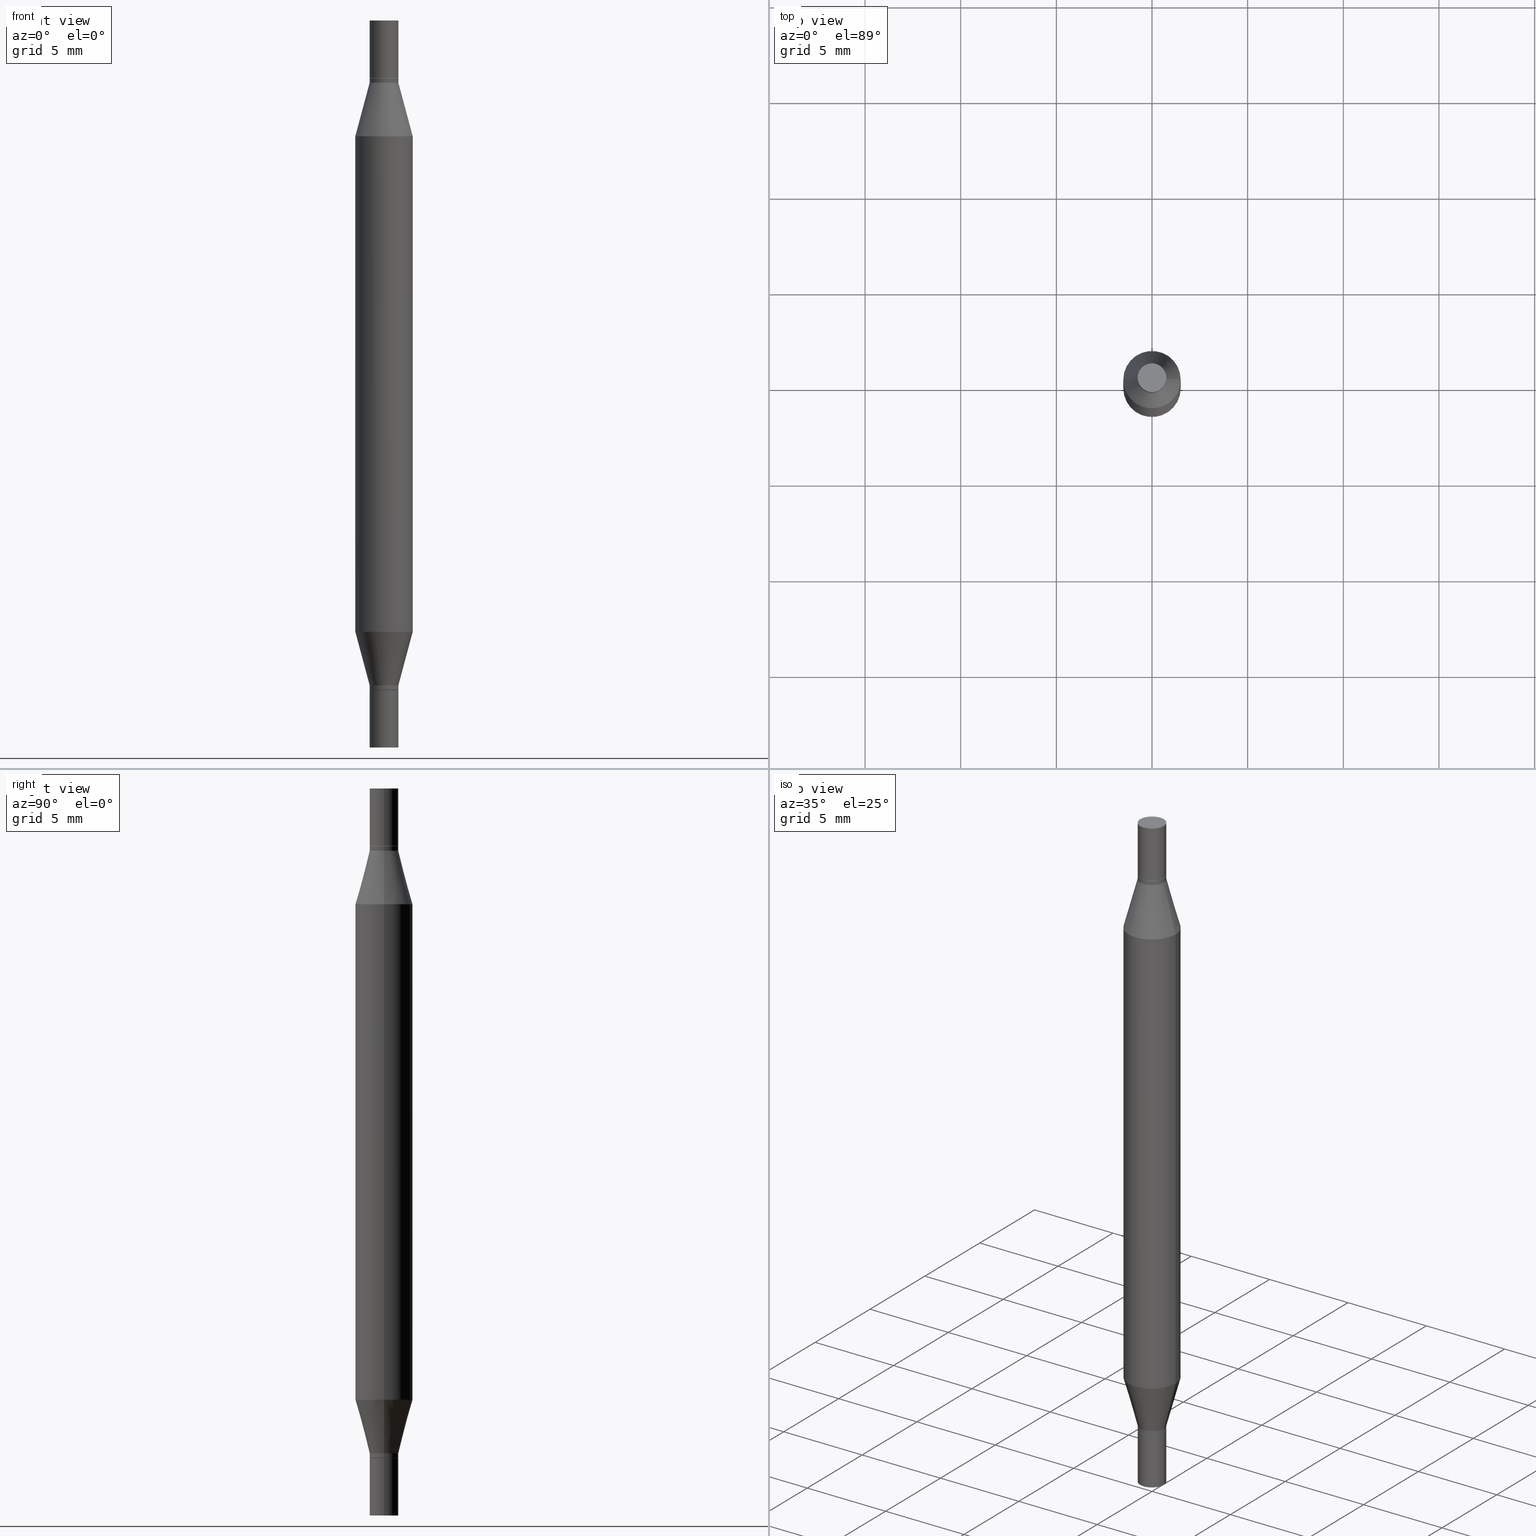
[diagram: canonical four-view strip — front | top / right | iso, engineering-drawing reading convention]
A machine part, canonical four-view strip (front | top / right | iso — engineering-drawing reading convention). The complete STEP part file that produces these views, byte-faithful:
ISO-10303-21;
HEADER;
FILE_DESCRIPTION (( 'STEP AP203' ),
    '1' );
FILE_NAME ('41409.STEP',
    '2024-03-04T16:08:00',
    ( '' ),
    ( '' ),
    'SwSTEP 2.0',
    'SolidWorks 2023',
    '' );
FILE_SCHEMA (( 'CONFIG_CONTROL_DESIGN' ));
ENDSEC;

DATA;
#1 = DIRECTION ( 'NONE',  ( 1.000000000000000000, -6.982962677686266711E-15, 0.000000000000000000 ) ) ;
#2 = PRODUCT ( '41409', '41409', '', ( #155 ) ) ;
#3 = ORIENTED_EDGE ( 'NONE', *, *, #811, .T. ) ;
#4 = CIRCLE ( 'NONE', #938, 0.02954999999999992008 ) ;
#5 = ADVANCED_FACE ( 'NONE', ( #562 ), #345, .T. ) ;
#6 = CIRCLE ( 'NONE', #600, 0.02954999999999991661 ) ;
#7 = DIRECTION ( 'NONE',  ( 1.000000000000000000, -6.982962677686266711E-15, 0.000000000000000000 ) ) ;
#8 = VERTEX_POINT ( 'NONE', #857 ) ;
#9 = COORDINATED_UNIVERSAL_TIME_OFFSET ( 5, 0, .BEHIND. ) ;
#10 = CARTESIAN_POINT ( 'NONE',  ( 0.02954999999999992008, -5.015862091382062058E-15, -1.377499999999999947 ) ) ;
#11 = DIRECTION ( 'NONE',  ( -2.445468806185136877E-29, 3.491481338843145188E-15, 1.000000000000000000 ) ) ;
#12 = EDGE_LOOP ( 'NONE', ( #107, #771, #717, #62 ) ) ;
#13 = COORDINATED_UNIVERSAL_TIME_OFFSET ( 5, 0, .BEHIND. ) ;
#14 = DIRECTION ( 'NONE',  ( -0.2588190451025219607, -1.597197180879709199E-15, -0.9659258262890679791 ) ) ;
#15 = CIRCLE ( 'NONE', #463, 0.02954999999999999988 ) ;
#16 = DIRECTION ( 'NONE',  ( 2.445468806185136597E-29, 3.491805094961124077E-15, 1.000000000000000000 ) ) ;
#17 = ORIENTED_EDGE ( 'NONE', *, *, #592, .T. ) ;
#18 = VECTOR ( 'NONE', #620, 39.37007874015748143 ) ;
#19 = CIRCLE ( 'NONE', #806, 0.02954999999999999988 ) ;
#20 = CARTESIAN_POINT ( 'NONE',  ( -0.02904999999999999596, -2.128425291155909173E-16, -0.1181000000000000383 ) ) ;
#21 = CARTESIAN_POINT ( 'NONE',  ( 3.658665880933582389E-29, -5.223605231043229660E-15, -1.496099999999999985 ) ) ;
#22 = APPROVAL_ROLE ( '' ) ;
#23 = EDGE_LOOP ( 'NONE', ( #273, #533, #132, #624 ) ) ;
#24 = CARTESIAN_POINT ( 'NONE',  ( -0.02954999999999991661, -4.583140203546760956E-15, -1.368099999999999872 ) ) ;
#25 = CARTESIAN_POINT ( 'NONE',  ( 3.369856014923117948E-29, -4.121399959508538653E-16, -0.1181000000000000383 ) ) ;
#26 = ORIENTED_EDGE ( 'NONE', *, *, #688, .F. ) ;
#27 = DIRECTION ( 'NONE',  ( -2.445468806185136597E-29, -3.491805094961124077E-15, -1.000000000000000000 ) ) ;
#28 = ADVANCED_FACE ( 'NONE', ( #272 ), #959, .T. ) ;
#29 = CARTESIAN_POINT ( 'NONE',  ( -0.05904999999999999832, -1.316359346049593314E-15, -0.7480499999999999927 ) ) ;
#30 = VECTOR ( 'NONE', #823, 39.37007874015748143 ) ;
#31 = DATE_AND_TIME ( #856, #235 ) ;
#32 = DIRECTION ( 'NONE',  ( -2.445468806185136597E-29, 3.491481338843145583E-15, 1.000000000000000000 ) ) ;
#33 = CC_DESIGN_PERSON_AND_ORGANIZATION_ASSIGNMENT ( #256, #193, ( #939 ) ) ;
#34 = ORIENTED_EDGE ( 'NONE', *, *, #484, .F. ) ;
#35 = AXIS2_PLACEMENT_3D ( 'NONE', #368, #678, #294 ) ;
#36 = CARTESIAN_POINT ( 'NONE',  ( 3.345645873741884627E-29, -4.467088663909703532E-16, -0.1280000000000001137 ) ) ;
#37 = CARTESIAN_POINT ( 'NONE',  ( 0.000000000000000000, -5.223847416807283040E-15, -1.496099999999999985 ) ) ;
#38 = CIRCLE ( 'NONE', #84, 0.02954999999999992008 ) ;
#39 = CARTESIAN_POINT ( 'NONE',  ( 3.369856014923117948E-29, -4.811261284925853951E-15, -1.377999999999999892 ) ) ;
#40 = EDGE_LOOP ( 'NONE', ( #605, #836 ) ) ;
#41 = ORIENTED_EDGE ( 'NONE', *, *, #656, .T. ) ;
#42 = DIRECTION ( 'NONE',  ( 0.2588190451025219607, -5.180148453816010357E-15, -0.9659258262890679791 ) ) ;
#43 = CARTESIAN_POINT ( 'NONE',  ( -0.02954999999999999988, -3.221189259251762717E-18, 7.347294627798473966E-31 ) ) ;
#44 = DIRECTION ( 'NONE',  ( 1.000000000000000000, -6.982962677686278543E-15, 0.000000000000000000 ) ) ;
#45 = CARTESIAN_POINT ( 'NONE',  ( 0.02954999999999992008, -5.430193963932912651E-15, -1.496099999999999985 ) ) ;
#46 = EDGE_LOOP ( 'NONE', ( #909, #837, #342, #757 ) ) ;
#47 = DIRECTION ( 'NONE',  ( -2.445468806185136597E-29, 3.491481338843145583E-15, 1.000000000000000000 ) ) ;
#48 = DIRECTION ( 'NONE',  ( 0.000000000000000000, 3.491643216902134435E-15, 1.000000000000000000 ) ) ;
#49 = CC_DESIGN_DATE_AND_TIME_ASSIGNMENT ( #619, #172, ( #843 ) ) ;
#50 = ADVANCED_FACE ( 'NONE', ( #862 ), #556, .F. ) ;
#51 = DIRECTION ( 'NONE',  ( -2.445468806185136597E-29, 3.491481338843145583E-15, 1.000000000000000000 ) ) ;
#52 = DIRECTION ( 'NONE',  ( 1.000000000000000000, -6.982962677686265922E-15, 2.260776888683160832E-33 ) ) ;
#53 = AXIS2_PLACEMENT_3D ( 'NONE', #902, #770, #679 ) ;
#54 = EDGE_CURVE ( 'NONE', #314, #363, #934, .T. ) ;
#55 = VERTEX_POINT ( 'NONE', #257 ) ;
#56 = FACE_OUTER_BOUND ( 'NONE', #302, .T. ) ;
#57 = CIRCLE ( 'NONE', #167, 0.02954999999999999988 ) ;
#58 = LINE ( 'NONE', #227, #202 ) ;
#59 = ORIENTED_EDGE ( 'NONE', *, *, #327, .T. ) ;
#60 = DIRECTION ( 'NONE',  ( -2.438088387897959208E-29, -3.491805094961123683E-15, -1.000000000000000000 ) ) ;
#61 = AXIS2_PLACEMENT_3D ( 'NONE', #653, #627, #94 ) ;
#62 = ORIENTED_EDGE ( 'NONE', *, *, #671, .T. ) ;
#63 = EDGE_CURVE ( 'NONE', #695, #903, #637, .T. ) ;
#64 = EDGE_CURVE ( 'NONE', #632, #801, #883, .T. ) ;
#65 = CYLINDRICAL_SURFACE ( 'NONE', #437, 0.02954999999999992008 ) ;
#66 = EDGE_LOOP ( 'NONE', ( #357, #3, #912, #146 ) ) ;
#67 = CIRCLE ( 'NONE', #53, 0.05904999999999999832 ) ;
#68 = ADVANCED_FACE ( 'NONE', ( #475 ), #340, .T. ) ;
#69 = ADVANCED_FACE ( 'NONE', ( #789 ), #402, .T. ) ;
#70 = EDGE_CURVE ( 'NONE', #154, #464, #15, .T. ) ;
#71 = AXIS2_PLACEMENT_3D ( 'NONE', #311, #910, #258 ) ;
#72 = PLANE ( 'NONE',  #738 ) ;
#73 = EDGE_LOOP ( 'NONE', ( #958, #41, #687, #293 ) ) ;
#74 = CYLINDRICAL_SURFACE ( 'NONE', #685, 0.02954999999999999988 ) ;
#75 = EDGE_LOOP ( 'NONE', ( #236, #283, #115, #831 ) ) ;
#76 = CARTESIAN_POINT ( 'NONE',  ( 0.000000000000000000, -5.223847416807283040E-15, -1.496099999999999985 ) ) ;
#77 = EDGE_CURVE ( 'NONE', #935, #8, #490, .T. ) ;
#78 = CARTESIAN_POINT ( 'NONE',  ( 0.02954999999999992008, -6.202324456239627230E-16, -0.1185999999999999277 ) ) ;
#79 = VERTEX_POINT ( 'NONE', #105 ) ;
#80 = PERSON_AND_ORGANIZATION ( #277, #119 ) ;
#81 = AXIS2_PLACEMENT_3D ( 'NONE', #887, #440, #366 ) ;
#82 = CARTESIAN_POINT ( 'NONE',  ( 3.369856014923117948E-29, -4.121399959508538653E-16, -0.1181000000000000383 ) ) ;
#83 = ORIENTED_EDGE ( 'NONE', *, *, #529, .T. ) ;
#84 = AXIS2_PLACEMENT_3D ( 'NONE', #261, #549, #395 ) ;
#85 = AXIS2_PLACEMENT_3D ( 'NONE', #124, #588, #129 ) ;
#86 = CARTESIAN_POINT ( 'NONE',  ( -0.02954999999999991661, -2.439811505568221169E-16, -0.1280000000000001137 ) ) ;
#87 = AXIS2_PLACEMENT_3D ( 'NONE', #852, #504, #125 ) ;
#88 = CARTESIAN_POINT ( 'NONE',  ( 3.368633280520025146E-29, -4.138858984983355777E-16, -0.1185999999999999277 ) ) ;
#89 = VERTEX_POINT ( 'NONE', #265 ) ;
#90 = CLOSED_SHELL ( 'NONE', ( #455, #519, #139, #69, #459, #223, #601, #773, #448, #255 ) ) ;
#91 = APPROVAL_STATUS ( 'not_yet_approved' ) ;
#92 = EDGE_CURVE ( 'NONE', #516, #444, #416, .T. ) ;
#93 = FACE_OUTER_BOUND ( 'NONE', #66, .T. ) ;
#94 = DIRECTION ( 'NONE',  ( 1.000000000000000000, -6.982962677686265133E-15, 0.000000000000000000 ) ) ;
#95 = ORIENTED_EDGE ( 'NONE', *, *, #317, .F. ) ;
#96 = CARTESIAN_POINT ( 'NONE',  ( -0.02904999999999999596, -4.604848620187545492E-15, -1.377999999999999892 ) ) ;
#97 = DIRECTION ( 'NONE',  ( 2.445468806185136597E-29, 3.491805094961124077E-15, 1.000000000000000000 ) ) ;
#98 = AXIS2_PLACEMENT_3D ( 'NONE', #215, #60, #140 ) ;
#99 = EDGE_CURVE ( 'NONE', #766, #526, #968, .T. ) ;
#100 = CARTESIAN_POINT ( 'NONE',  ( -0.02954999999999999988, -5.021119700973134755E-15, -1.496099999999999985 ) ) ;
#101 = AXIS2_PLACEMENT_3D ( 'NONE', #779, #184, #932 ) ;
#102 = ORIENTED_EDGE ( 'NONE', *, *, #786, .F. ) ;
#103 = CC_DESIGN_APPROVAL ( #405, ( #843 ) ) ;
#104 = COORDINATED_UNIVERSAL_TIME_OFFSET ( 5, 0, .BEHIND. ) ;
#105 = CARTESIAN_POINT ( 'NONE',  ( 0.02954999999999999988, -2.061043613615753919E-16, 6.680595706058740339E-35 ) ) ;
#106 = EDGE_CURVE ( 'NONE', #526, #766, #893, .T. ) ;
#107 = ORIENTED_EDGE ( 'NONE', *, *, #684, .F. ) ;
#108 = FACE_OUTER_BOUND ( 'NONE', #907, .T. ) ;
#109 = CARTESIAN_POINT ( 'NONE',  ( -0.02954999999999999988, -5.021119700973134755E-15, -1.496099999999999985 ) ) ;
#110 = EDGE_LOOP ( 'NONE', ( #646, #424, #219, #102 ) ) ;
#111 = DIRECTION ( 'NONE',  ( 1.000000000000000000, -6.982962677686265922E-15, 4.876176775795935793E-29 ) ) ;
#112 = DIRECTION ( 'NONE',  ( -2.445468806185136877E-29, -3.491805094961123683E-15, -1.000000000000000000 ) ) ;
#113 = AXIS2_PLACEMENT_3D ( 'NONE', #288, #446, #655 ) ;
#114 = DIRECTION ( 'NONE',  ( 1.000000000000000000, -6.982962677686261977E-15, 0.000000000000000000 ) ) ;
#115 = ORIENTED_EDGE ( 'NONE', *, *, #889, .T. ) ;
#116 = AXIS2_PLACEMENT_3D ( 'NONE', #954, #16, #755 ) ;
#117 = DIRECTION ( 'NONE',  ( 2.445468806185136597E-29, 3.491805094961124077E-15, 1.000000000000000000 ) ) ;
#118 = LINE ( 'NONE', #648, #404 ) ;
#119 = ORGANIZATION ( 'UNSPECIFIED', 'UNSPECIFIED', '' ) ;
#120 = FACE_OUTER_BOUND ( 'NONE', #657, .T. ) ;
#121 = DIRECTION ( 'NONE',  ( -2.438088387897959208E-29, -3.491805094961123683E-15, -1.000000000000000000 ) ) ;
#122 = ORIENTED_EDGE ( 'NONE', *, *, #913, .T. ) ;
#123 = ADVANCED_FACE ( 'NONE', ( #204 ), #520, .F. ) ;
#124 = CARTESIAN_POINT ( 'NONE',  ( 3.345645873741884627E-29, -4.467088663909703532E-16, -0.1280000000000001137 ) ) ;
#125 = DIRECTION ( 'NONE',  ( 1.000000000000000000, -6.982962677686265922E-15, 4.876176775795935793E-29 ) ) ;
#126 = CARTESIAN_POINT ( 'NONE',  ( -0.05904999999999999832, -4.260284833459826385E-16, -0.2380954988232817371 ) ) ;
#127 = CARTESIAN_POINT ( 'NONE',  ( 0.000000000000000000, -5.223847416807283040E-15, -1.496099999999999985 ) ) ;
#128 = EDGE_LOOP ( 'NONE', ( #609, #477, #813, #845 ) ) ;
#129 = DIRECTION ( 'NONE',  ( 1.000000000000000000, -6.982962677686265133E-15, 0.000000000000000000 ) ) ;
#130 = DIRECTION ( 'NONE',  ( 1.000000000000000000, -6.982962677686280910E-15, 0.000000000000000000 ) ) ;
#131 = CIRCLE ( 'NONE', #607, 0.02954999999999992008 ) ;
#132 = ORIENTED_EDGE ( 'NONE', *, *, #964, .T. ) ;
#133 = DIRECTION ( 'NONE',  ( -0.7071067811865656694, 7.493145998870420424E-15, 0.7071067811865294761 ) ) ;
#134 = CIRCLE ( 'NONE', #908, 0.02954999999999999988 ) ;
#135 = DIRECTION ( 'NONE',  ( -2.445468806185136597E-29, 3.491481338843145583E-15, 1.000000000000000000 ) ) ;
#136 = AXIS2_PLACEMENT_3D ( 'NONE', #851, #431, #492 ) ;
#137 = DIRECTION ( 'NONE',  ( -2.438088387897959208E-29, -3.491805094961123683E-15, -1.000000000000000000 ) ) ;
#138 = ORIENTED_EDGE ( 'NONE', *, *, #165, .F. ) ;
#139 = ADVANCED_FACE ( 'NONE', ( #746 ), #65, .T. ) ;
#140 = DIRECTION ( 'NONE',  ( 1.000000000000000000, -6.982962677686265922E-15, 2.260776888683160832E-33 ) ) ;
#141 = CIRCLE ( 'NONE', #659, 0.05904999999999999832 ) ;
#142 = ORIENTED_EDGE ( 'NONE', *, *, #92, .F. ) ;
#143 = EDGE_CURVE ( 'NONE', #595, #708, #579, .T. ) ;
#144 = LINE ( 'NONE', #313, #780 ) ;
#145 = CIRCLE ( 'NONE', #185, 0.05904999999999999832 ) ;
#146 = ORIENTED_EDGE ( 'NONE', *, *, #452, .F. ) ;
#147 = CONICAL_SURFACE ( 'NONE', #284, 0.02954999999999991661, 0.2617993877991506846 ) ;
#148 = DIRECTION ( 'NONE',  ( 1.000000000000000000, -6.982962677686265133E-15, 0.000000000000000000 ) ) ;
#149 = CIRCLE ( 'NONE', #209, 0.02954999999999999988 ) ;
#150 = ORIENTED_EDGE ( 'NONE', *, *, #54, .T. ) ;
#151 = AXIS2_PLACEMENT_3D ( 'NONE', #194, #485, #794 ) ;
#152 = EDGE_CURVE ( 'NONE', #897, #850, #842, .T. ) ;
#153 = DIRECTION ( 'NONE',  ( 1.000000000000000000, -6.982962677686265133E-15, 0.000000000000000000 ) ) ;
#154 = VERTEX_POINT ( 'NONE', #891 ) ;
#155 = MECHANICAL_CONTEXT ( 'NONE', #266, 'mechanical' ) ;
#156 = ORIENTED_EDGE ( 'NONE', *, *, #339, .F. ) ;
#157 = DIRECTION ( 'NONE',  ( 1.000000000000000000, -6.982962677686273021E-15, 0.000000000000000000 ) ) ;
#158 = ADVANCED_FACE ( 'NONE', ( #663 ), #373, .T. ) ;
#159 = CARTESIAN_POINT ( 'NONE',  ( 0.000000000000000000, -5.223847416807283040E-15, -1.496099999999999985 ) ) ;
#160 = EDGE_LOOP ( 'NONE', ( #822, #502 ) ) ;
#161 = PERSON_AND_ORGANIZATION_ROLE ( 'design_owner' ) ;
#162 = VECTOR ( 'NONE', #844, 39.37007874015748143 ) ;
#163 = FACE_OUTER_BOUND ( 'NONE', #175, .T. ) ;
#164 = ADVANCED_FACE ( 'NONE', ( #590 ), #443, .F. ) ;
#165 = EDGE_CURVE ( 'NONE', #569, #382, #904, .T. ) ;
#166 = CARTESIAN_POINT ( 'NONE',  ( 0.02954999999999999988, -5.430193963932912651E-15, -1.496099999999999985 ) ) ;
#167 = AXIS2_PLACEMENT_3D ( 'NONE', #192, #361, #506 ) ;
#168 = ORIENTED_EDGE ( 'NONE', *, *, #471, .F. ) ;
#169 = CIRCLE ( 'NONE', #453, 0.05904999999999999832 ) ;
#170 = MANIFOLD_SOLID_BREP ( 'Mirror1[1]', #90 ) ;
#171 = PRODUCT_DEFINITION_FORMATION_WITH_SPECIFIED_SOURCE ( 'ANY', '', #2, .NOT_KNOWN. ) ;
#172 = DATE_TIME_ROLE ( 'creation_date' ) ;
#173 = FACE_OUTER_BOUND ( 'NONE', #591, .T. ) ;
#174 = DIRECTION ( 'NONE',  ( 1.000000000000000000, -6.982962677686265922E-15, 2.260776888683160832E-33 ) ) ;
#175 = EDGE_LOOP ( 'NONE', ( #977, #375, #952, #720 ) ) ;
#176 = CC_DESIGN_DATE_AND_TIME_ASSIGNMENT ( #31, #480, ( #939 ) ) ;
#177 = DIRECTION ( 'NONE',  ( 2.445468806185136597E-29, 3.491805094961124077E-15, 1.000000000000000000 ) ) ;
#178 = DIRECTION ( 'NONE',  ( 1.000000000000000000, -6.982962677686278543E-15, 0.000000000000000000 ) ) ;
#179 = FACE_OUTER_BOUND ( 'NONE', #670, .T. ) ;
#180 = DIRECTION ( 'NONE',  ( 0.000000000000000000, 1.000000000000000000, -4.626330217890369336E-15 ) ) ;
#181 = MANIFOLD_SOLID_BREP ( 'Body-Move/Copy2[1]', #226 ) ;
#182 = PERSON_AND_ORGANIZATION ( #277, #119 ) ;
#183 = ORIENTED_EDGE ( 'NONE', *, *, #606, .T. ) ;
#184 = DIRECTION ( 'NONE',  ( 2.445468806185136597E-29, 3.491805094961124077E-15, 1.000000000000000000 ) ) ;
#185 = AXIS2_PLACEMENT_3D ( 'NONE', #326, #764, #153 ) ;
#186 = VECTOR ( 'NONE', #594, 39.37007874015748143 ) ;
#187 = ORIENTED_EDGE ( 'NONE', *, *, #212, .F. ) ;
#188 = AXIS2_PLACEMENT_3D ( 'NONE', #702, #359, #662 ) ;
#189 = VERTEX_POINT ( 'NONE', #742 ) ;
#190 = DIRECTION ( 'NONE',  ( 1.000000000000000000, -6.982962677686280910E-15, 0.000000000000000000 ) ) ;
#191 = EDGE_CURVE ( 'NONE', #199, #882, #58, .T. ) ;
#192 = CARTESIAN_POINT ( 'NONE',  ( 3.369856014923117948E-29, -4.121399959508538653E-16, -0.1181000000000000383 ) ) ;
#193 = PERSON_AND_ORGANIZATION_ROLE ( 'classification_officer' ) ;
#194 = CARTESIAN_POINT ( 'NONE',  ( 2.063465471256628659E-16, 0.02954999999999958701, -0.1181000000000003020 ) ) ;
#195 = ORIENTED_EDGE ( 'NONE', *, *, #951, .T. ) ;
#196 =( NAMED_UNIT ( * ) PLANE_ANGLE_UNIT ( ) SI_UNIT ( $, .RADIAN. ) );
#197 = DIRECTION ( 'NONE',  ( -2.445468806185136597E-29, -3.491805094961124077E-15, -1.000000000000000000 ) ) ;
#198 = ORIENTED_EDGE ( 'NONE', *, *, #558, .T. ) ;
#199 = VERTEX_POINT ( 'NONE', #217 ) ;
#200 = CARTESIAN_POINT ( 'NONE',  ( -0.02954999999999992008, -5.021119700973135544E-15, -1.496099999999999985 ) ) ;
#201 = LINE ( 'NONE', #275, #383 ) ;
#202 = VECTOR ( 'NONE', #736, 39.37007874015748143 ) ;
#203 = CYLINDRICAL_SURFACE ( 'NONE', #612, 0.02954999999999999988 ) ;
#204 = FACE_OUTER_BOUND ( 'NONE', #40, .T. ) ;
#205 = ORIENTED_EDGE ( 'NONE', *, *, #92, .T. ) ;
#206 = CONICAL_SURFACE ( 'NONE', #804, 0.02954999999999991661, 0.2617993877991506846 ) ;
#207 = CYLINDRICAL_SURFACE ( 'NONE', #955, 0.02954999999999992008 ) ;
#208 = CARTESIAN_POINT ( 'NONE',  ( 0.02954999999999999988, -5.430193963932912651E-15, -1.496099999999999985 ) ) ;
#209 = AXIS2_PLACEMENT_3D ( 'NONE', #570, #503, #809 ) ;
#210 = CARTESIAN_POINT ( 'NONE',  ( 3.369856014923117948E-29, -4.121399959508538653E-16, -0.1181000000000000383 ) ) ;
#211 = PLANE ( 'NONE',  #918 ) ;
#212 = EDGE_CURVE ( 'NONE', #708, #882, #667, .T. ) ;
#213 = EDGE_LOOP ( 'NONE', ( #168, #854 ) ) ;
#214 = DIRECTION ( 'NONE',  ( -2.445468806185136597E-29, 3.491481338843145583E-15, 1.000000000000000000 ) ) ;
#215 = CARTESIAN_POINT ( 'NONE',  ( 3.569033433238669537E-29, -1.281165808971637162E-16, 0.000000000000000000 ) ) ;
#216 = ORIENTED_EDGE ( 'NONE', *, *, #772, .F. ) ;
#217 = CARTESIAN_POINT ( 'NONE',  ( 0.02954999999999991661, -4.983042166796936213E-15, -1.368099999999999872 ) ) ;
#218 = AXIS2_PLACEMENT_3D ( 'NONE', #427, #400, #174 ) ;
#219 = ORIENTED_EDGE ( 'NONE', *, *, #376, .T. ) ;
#220 = CIRCLE ( 'NONE', #676, 0.02954999999999991661 ) ;
#221 = ADVANCED_FACE ( 'NONE', ( #819 ), #962, .T. ) ;
#222 = CARTESIAN_POINT ( 'NONE',  ( -0.02954999999999999988, 2.099653784171096041E-16, -1.453545319170324550E-30 ) ) ;
#223 = ADVANCED_FACE ( 'NONE', ( #966 ), #211, .F. ) ;
#224 = ORIENTED_EDGE ( 'NONE', *, *, #926, .T. ) ;
#225 = LINE ( 'NONE', #96, #442 ) ;
#226 = CLOSED_SHELL ( 'NONE', ( #68, #461, #551, #417 ) ) ;
#227 = CARTESIAN_POINT ( 'NONE',  ( 0.02954999999999991661, -4.983042166796936213E-15, -1.368099999999999872 ) ) ;
#228 = VERTEX_POINT ( 'NONE', #596 ) ;
#229 = CARTESIAN_POINT ( 'NONE',  ( 3.658665880933582389E-29, 2.421857640538043390E-19, 0.000000000000000000 ) ) ;
#230 = ORIENTED_EDGE ( 'NONE', *, *, #511, .F. ) ;
#231 = EDGE_CURVE ( 'NONE', #154, #526, #895, .T. ) ;
#232 = DIRECTION ( 'NONE',  ( 1.000000000000000000, -6.982962677686264344E-15, 0.000000000000000000 ) ) ;
#233 = VECTOR ( 'NONE', #701, 39.37007874015748143 ) ;
#234 = DIRECTION ( 'NONE',  ( -2.445468806185136597E-29, -3.491805094961124077E-15, -1.000000000000000000 ) ) ;
#235 = LOCAL_TIME ( 11, 8, 0.000000000000000000, #561 ) ;
#236 = ORIENTED_EDGE ( 'NONE', *, *, #558, .F. ) ;
#237 = APPLICATION_CONTEXT ( 'configuration controlled 3d designs of mechanical parts and assemblies' ) ;
#238 = CARTESIAN_POINT ( 'NONE',  ( 0.02904999999999999596, -5.014116350712640554E-15, -1.377999999999999892 ) ) ;
#239 = ORIENTED_EDGE ( 'NONE', *, *, #873, .F. ) ;
#240 = DIRECTION ( 'NONE',  ( 1.000000000000000000, -6.982962677686281699E-15, 0.000000000000000000 ) ) ;
#241 = FACE_OUTER_BOUND ( 'NONE', #297, .T. ) ;
#242 = ORIENTED_EDGE ( 'NONE', *, *, #70, .T. ) ;
#243 = APPLICATION_PROTOCOL_DEFINITION ( 'international standard', 'config_control_design', 1994, #266 ) ;
#244 = AXIS2_PLACEMENT_3D ( 'NONE', #815, #507, #130 ) ;
#245 = CARTESIAN_POINT ( 'NONE',  ( 3.658665880933582389E-29, -5.223605231043229660E-15, -1.496099999999999985 ) ) ;
#246 = EDGE_CURVE ( 'NONE', #332, #850, #525, .T. ) ;
#247 = EDGE_CURVE ( 'NONE', #382, #816, #602, .T. ) ;
#248 = CARTESIAN_POINT ( 'NONE',  ( 3.345645873741884627E-29, -4.776695619671307391E-15, -1.368099999999999872 ) ) ;
#249 = EDGE_LOOP ( 'NONE', ( #979, #195, #467, #973 ) ) ;
#250 = CC_DESIGN_APPROVAL ( #489, ( #171 ) ) ;
#251 = CARTESIAN_POINT ( 'NONE',  ( 0.000000000000000000, -5.223847416807283040E-15, -1.496099999999999985 ) ) ;
#252 = FACE_OUTER_BOUND ( 'NONE', #783, .T. ) ;
#253 = DIRECTION ( 'NONE',  ( 1.000000000000000000, -6.982962677686266711E-15, 0.000000000000000000 ) ) ;
#254 = VERTEX_POINT ( 'NONE', #971 ) ;
#255 = ADVANCED_FACE ( 'NONE', ( #900 ), #528, .T. ) ;
#256 = PERSON_AND_ORGANIZATION ( #277, #119 ) ;
#257 = CARTESIAN_POINT ( 'NONE',  ( 0.02954999999999999988, -2.061043613615753919E-16, 6.680595706058740339E-35 ) ) ;
#258 = DIRECTION ( 'NONE',  ( 1.000000000000000000, -6.982962677686278543E-15, 0.000000000000000000 ) ) ;
#259 = ADVANCED_FACE ( 'NONE', ( #362 ), #74, .T. ) ;
#260 = EDGE_LOOP ( 'NONE', ( #156, #205, #224, #230 ) ) ;
#261 = CARTESIAN_POINT ( 'NONE',  ( 3.368633280520025146E-29, -4.809515544256433236E-15, -1.377499999999999947 ) ) ;
#262 = AXIS2_PLACEMENT_3D ( 'NONE', #835, #390, #7 ) ;
#263 = CARTESIAN_POINT ( 'NONE',  ( 3.369856014923117948E-29, -4.121399959508538653E-16, -0.1181000000000000383 ) ) ;
#264 = DATE_AND_TIME ( #411, #922 ) ;
#265 = CARTESIAN_POINT ( 'NONE',  ( 0.02904999999999999596, -6.149950617376399263E-16, -0.1181000000000000383 ) ) ;
#266 = APPLICATION_CONTEXT ( 'configuration controlled 3d designs of mechanical parts and assemblies' ) ;
#267 = CALENDAR_DATE ( 2024, 4, 3 ) ;
#268 = VECTOR ( 'NONE', #661, 39.37007874015748143 ) ;
#269 = ORIENTED_EDGE ( 'NONE', *, *, #77, .T. ) ;
#270 = CONICAL_SURFACE ( 'NONE', #136, 0.02954999999999991661, 0.2617993877991506846 ) ;
#271 = DIRECTION ( 'NONE',  ( 1.000000000000000000, -6.982962677686266711E-15, 4.876176775795935793E-29 ) ) ;
#272 = FACE_OUTER_BOUND ( 'NONE', #110, .T. ) ;
#273 = ORIENTED_EDGE ( 'NONE', *, *, #571, .F. ) ;
#274 = CARTESIAN_POINT ( 'NONE',  ( 0.05904999999999999832, -5.636191362924657961E-15, -1.496099999999999985 ) ) ;
#275 = CARTESIAN_POINT ( 'NONE',  ( -0.05904999999999999832, -4.818735010038875060E-15, -1.496099999999999985 ) ) ;
#276 = CARTESIAN_POINT ( 'NONE',  ( 3.369856014923117948E-29, -4.811261284925853951E-15, -1.377999999999999892 ) ) ;
#277 = PERSON ( 'UNSPECIFIED', 'UNSPECIFIED', 'UNSPECIFIED', ('UNSPECIFIED'), ('UNSPECIFIED'), ('UNSPECIFIED') ) ;
#278 = VERTEX_POINT ( 'NONE', #319 ) ;
#279 =( CONVERSION_BASED_UNIT ( 'INCH', #890 ) LENGTH_UNIT ( ) NAMED_UNIT ( #597 ) );
#280 = CARTESIAN_POINT ( 'NONE',  ( 3.345645873741884627E-29, -4.467088663909703532E-16, -0.1280000000000001137 ) ) ;
#281 = AXIS2_PLACEMENT_3D ( 'NONE', #682, #458, #604 ) ;
#282 = CARTESIAN_POINT ( 'NONE',  ( 0.000000000000000000, -5.223847416807283040E-15, -1.496099999999999985 ) ) ;
#283 = ORIENTED_EDGE ( 'NONE', *, *, #355, .F. ) ;
#284 = AXIS2_PLACEMENT_3D ( 'NONE', #769, #635, #240 ) ;
#285 = DIRECTION ( 'NONE',  ( 1.000000000000000000, -6.982962677686265133E-15, 0.000000000000000000 ) ) ;
#286 = EDGE_CURVE ( 'NONE', #314, #537, #360, .T. ) ;
#287 = AXIS2_PLACEMENT_3D ( 'NONE', #315, #548, #782 ) ;
#288 = CARTESIAN_POINT ( 'NONE',  ( 3.345645873741884627E-29, -4.467088663909703532E-16, -0.1280000000000001137 ) ) ;
#289 = AXIS2_PLACEMENT_3D ( 'NONE', #335, #568, #942 ) ;
#290 = ORIENTED_EDGE ( 'NONE', *, *, #656, .F. ) ;
#291 = CARTESIAN_POINT ( 'NONE',  ( 3.076410765668157214E-29, -8.311408901143909150E-16, -0.2380954988232817371 ) ) ;
#292 = CARTESIAN_POINT ( 'NONE',  ( 3.369856014923117948E-29, -4.121399959508538653E-16, -0.1181000000000000383 ) ) ;
#293 = ORIENTED_EDGE ( 'NONE', *, *, #247, .F. ) ;
#294 = DIRECTION ( 'NONE',  ( 1.000000000000000000, -6.982962677686266711E-15, 0.000000000000000000 ) ) ;
#295 = DIRECTION ( 'NONE',  ( 1.000000000000000000, -6.982962677686265922E-15, 2.260776888683160832E-33 ) ) ;
#296 = VECTOR ( 'NONE', #381, 39.37007874015748143 ) ;
#297 = EDGE_LOOP ( 'NONE', ( #698, #59 ) ) ;
#298 = CARTESIAN_POINT ( 'NONE',  ( 0.02954999999999992008, -2.063465471256286244E-16, 1.440910237247695041E-30 ) ) ;
#299 = AXIS2_PLACEMENT_3D ( 'NONE', #865, #371, #232 ) ;
#300 = VECTOR ( 'NONE', #14, 39.37007874015748143 ) ;
#301 = DIRECTION ( 'NONE',  ( 1.000000000000000000, -6.982962677686261977E-15, 0.000000000000000000 ) ) ;
#302 = EDGE_LOOP ( 'NONE', ( #216, #269, #680, #683 ) ) ;
#303 = EDGE_CURVE ( 'NONE', #537, #189, #144, .T. ) ;
#304 = EDGE_CURVE ( 'NONE', #199, #695, #476, .T. ) ;
#305 = LINE ( 'NONE', #166, #296 ) ;
#306 = VERTEX_POINT ( 'NONE', #307 ) ;
#307 = CARTESIAN_POINT ( 'NONE',  ( -0.02954999999999991661, -2.275696666105042854E-16, -0.1280000000000001137 ) ) ;
#308 = CIRCLE ( 'NONE', #933, 0.02904999999999999596 ) ;
#309 = ORIENTED_EDGE ( 'NONE', *, *, #606, .F. ) ;
#310 = VECTOR ( 'NONE', #674, 39.37007874015748143 ) ;
#311 = CARTESIAN_POINT ( 'NONE',  ( 3.369856014923117948E-29, -4.811261284925853951E-15, -1.377999999999999892 ) ) ;
#312 = CIRCLE ( 'NONE', #188, 0.02954999999999992008 ) ;
#313 = CARTESIAN_POINT ( 'NONE',  ( 0.02904999999999999596, -6.149950617376399263E-16, -0.1181000000000000383 ) ) ;
#314 = VERTEX_POINT ( 'NONE', #450 ) ;
#315 = CARTESIAN_POINT ( 'NONE',  ( 0.000000000000000000, 0.000000000000000000, 0.000000000000000000 ) ) ;
#316 = ORIENTED_EDGE ( 'NONE', *, *, #869, .F. ) ;
#317 = EDGE_CURVE ( 'NONE', #903, #882, #67, .T. ) ;
#318 = LINE ( 'NONE', #86, #300 ) ;
#319 = CARTESIAN_POINT ( 'NONE',  ( 0.02954999999999991661, -6.530554135165988789E-16, -0.1280000000000001137 ) ) ;
#320 = EDGE_CURVE ( 'NONE', #363, #306, #756, .T. ) ;
#321 = EDGE_LOOP ( 'NONE', ( #451, #316, #916, #183 ) ) ;
#322 = CALENDAR_DATE ( 2024, 4, 3 ) ;
#323 = EDGE_CURVE ( 'NONE', #79, #634, #305, .T. ) ;
#324 = EDGE_CURVE ( 'NONE', #189, #363, #131, .T. ) ;
#325 = CARTESIAN_POINT ( 'NONE',  ( 0.000000000000000000, -5.223847416807283040E-15, -1.496099999999999985 ) ) ;
#326 = CARTESIAN_POINT ( 'NONE',  ( 3.076410765668157214E-29, -8.311408901143909150E-16, -0.2380954988232817371 ) ) ;
#327 = EDGE_CURVE ( 'NONE', #228, #89, #419, .T. ) ;
#328 = ORIENTED_EDGE ( 'NONE', *, *, #339, .T. ) ;
#329 = DIRECTION ( 'NONE',  ( -1.000000000000000000, 6.982962677686265922E-15, -2.260776888683160832E-33 ) ) ;
#330 = DIRECTION ( 'NONE',  ( -2.445468806185136597E-29, -3.491805094961124077E-15, -1.000000000000000000 ) ) ;
#331 = AXIS2_PLACEMENT_3D ( 'NONE', #696, #791, #329 ) ;
#332 = VERTEX_POINT ( 'NONE', #78 ) ;
#333 = CARTESIAN_POINT ( 'NONE',  ( 0.02954999999999999988, -5.017607832051483561E-15, -1.377999999999999892 ) ) ;
#334 = AXIS2_PLACEMENT_3D ( 'NONE', #927, #573, #253 ) ;
#335 = CARTESIAN_POINT ( 'NONE',  ( 0.000000000000000000, 0.000000000000000000, 0.000000000000000000 ) ) ;
#336 = ORIENTED_EDGE ( 'NONE', *, *, #530, .F. ) ;
#337 = DIRECTION ( 'NONE',  ( -2.445468806185136597E-29, -3.491805094961124077E-15, -1.000000000000000000 ) ) ;
#338 = CARTESIAN_POINT ( 'NONE',  ( -0.02954999999999991661, -2.439811505568221169E-16, -0.1280000000000001137 ) ) ;
#339 = EDGE_CURVE ( 'NONE', #516, #55, #623, .T. ) ;
#340 = CYLINDRICAL_SURFACE ( 'NONE', #672, 0.02954999999999999988 ) ;
#341 = EDGE_CURVE ( 'NONE', #615, #695, #911, .T. ) ;
#342 = ORIENTED_EDGE ( 'NONE', *, *, #246, .T. ) ;
#343 = DIRECTION ( 'NONE',  ( 1.000000000000000000, -6.982962677686273021E-15, 0.000000000000000000 ) ) ;
#344 = LINE ( 'NONE', #338, #691 ) ;
#345 = CYLINDRICAL_SURFACE ( 'NONE', #289, 0.02954999999999992008 ) ;
#346 = VECTOR ( 'NONE', #560, 39.37007874015748143 ) ;
#347 = ORIENTED_EDGE ( 'NONE', *, *, #303, .F. ) ;
#348 = DIRECTION ( 'NONE',  ( -2.445468806185136877E-29, -3.491805094961123683E-15, -1.000000000000000000 ) ) ;
#349 = CARTESIAN_POINT ( 'NONE',  ( -0.02954999999999999988, -3.221189259251762717E-18, -0.1181000000000000383 ) ) ;
#350 = DIRECTION ( 'NONE',  ( -2.445468806185136597E-29, 3.491481338843145583E-15, 1.000000000000000000 ) ) ;
#351 = DIRECTION ( 'NONE',  ( -0.7071067811865656694, 2.382025595312421833E-15, -0.7071067811865294761 ) ) ;
#352 = ORIENTED_EDGE ( 'NONE', *, *, #63, .F. ) ;
#353 = DIRECTION ( 'NONE',  ( -2.438088387897960049E-29, 3.491481338843145188E-15, 1.000000000000000000 ) ) ;
#354 = DIRECTION ( 'NONE',  ( 1.000000000000000000, -6.982962677686265922E-15, 0.000000000000000000 ) ) ;
#355 = EDGE_CURVE ( 'NONE', #875, #470, #145, .T. ) ;
#356 = CARTESIAN_POINT ( 'NONE',  ( 3.076410765668157214E-29, -8.311408901143909150E-16, -0.2380954988232817371 ) ) ;
#357 = ORIENTED_EDGE ( 'NONE', *, *, #152, .F. ) ;
#358 = CARTESIAN_POINT ( 'NONE',  ( -0.02954999999999991661, -2.275696666105042854E-16, -0.1280000000000001137 ) ) ;
#359 = DIRECTION ( 'NONE',  ( -2.445468806185136597E-29, 3.491481338843145583E-15, 1.000000000000000000 ) ) ;
#360 = CIRCLE ( 'NONE', #262, 0.02904999999999999596 ) ;
#361 = DIRECTION ( 'NONE',  ( 2.445468806185136597E-29, 3.491805094961124077E-15, 1.000000000000000000 ) ) ;
#362 = FACE_OUTER_BOUND ( 'NONE', #790, .T. ) ;
#363 = VERTEX_POINT ( 'NONE', #622 ) ;
#364 = CYLINDRICAL_SURFACE ( 'NONE', #693, 0.05904999999999999832 ) ;
#365 = DIRECTION ( 'NONE',  ( 1.000000000000000000, -6.982962677686265133E-15, 0.000000000000000000 ) ) ;
#366 = DIRECTION ( 'NONE',  ( 1.000000000000000000, -6.982962677686278543E-15, 0.000000000000000000 ) ) ;
#367 = ORIENTED_EDGE ( 'NONE', *, *, #873, .T. ) ;
#368 = CARTESIAN_POINT ( 'NONE',  ( 3.369856014923117948E-29, -4.121399959508538653E-16, -0.1181000000000000383 ) ) ;
#369 = DIRECTION ( 'NONE',  ( -2.445468806185136597E-29, -3.491805094961124077E-15, -1.000000000000000000 ) ) ;
#370 = ORIENTED_EDGE ( 'NONE', *, *, #324, .T. ) ;
#371 = DIRECTION ( 'NONE',  ( 2.445468806185136597E-29, 3.491805094961124077E-15, 1.000000000000000000 ) ) ;
#372 = DIRECTION ( 'NONE',  ( -2.445468806185136597E-29, 3.491481338843145583E-15, 1.000000000000000000 ) ) ;
#373 = CYLINDRICAL_SURFACE ( 'NONE', #244, 0.02954999999999992008 ) ;
#374 = AXIS2_PLACEMENT_3D ( 'NONE', #356, #669, #881 ) ;
#375 = ORIENTED_EDGE ( 'NONE', *, *, #324, .F. ) ;
#376 = EDGE_CURVE ( 'NONE', #254, #332, #703, .T. ) ;
#377 = CIRCLE ( 'NONE', #522, 0.02954999999999999988 ) ;
#378 = DIRECTION ( 'NONE',  ( 1.000000000000000000, -6.982962677686266711E-15, 0.000000000000000000 ) ) ;
#379 = ORIENTED_EDGE ( 'NONE', *, *, #63, .T. ) ;
#380 = AXIS2_PLACEMENT_3D ( 'NONE', #37, #330, #945 ) ;
#381 = DIRECTION ( 'NONE',  ( -2.445468806185136877E-29, -3.491805094961123683E-15, -1.000000000000000000 ) ) ;
#382 = VERTEX_POINT ( 'NONE', #238 ) ;
#383 = VECTOR ( 'NONE', #112, 39.37007874015748143 ) ;
#384 = DIRECTION ( 'NONE',  ( -2.445468806185136597E-29, -3.491805094961124077E-15, -1.000000000000000000 ) ) ;
#385 = AXIS2_PLACEMENT_3D ( 'NONE', #532, #384, #148 ) ;
#386 = ORIENTED_EDGE ( 'NONE', *, *, #688, .T. ) ;
#387 = APPROVAL_STATUS ( 'not_yet_approved' ) ;
#388 = CARTESIAN_POINT ( 'NONE',  ( 3.368633280520025146E-29, -4.138858984983355777E-16, -0.1185999999999999277 ) ) ;
#389 = AXIS2_PLACEMENT_3D ( 'NONE', #39, #350, #44 ) ;
#390 = DIRECTION ( 'NONE',  ( 2.445468806185136597E-29, 3.491805094961124077E-15, 1.000000000000000000 ) ) ;
#391 = APPROVAL_PERSON_ORGANIZATION ( #774, #489, #699 ) ;
#392 = ORIENTED_EDGE ( 'NONE', *, *, #585, .F. ) ;
#393 = CC_DESIGN_PERSON_AND_ORGANIZATION_ASSIGNMENT ( #486, #645, ( #171 ) ) ;
#394 = PERSON_AND_ORGANIZATION_ROLE ( 'creator' ) ;
#395 = DIRECTION ( 'NONE',  ( 1.000000000000000000, -6.982962677686280910E-15, 0.000000000000000000 ) ) ;
#396 = DIRECTION ( 'NONE',  ( 2.445468806185136597E-29, 3.491805094961124077E-15, 1.000000000000000000 ) ) ;
#397 = ORIENTED_EDGE ( 'NONE', *, *, #286, .T. ) ;
#398 = CALENDAR_DATE ( 2024, 4, 3 ) ;
#399 = DIRECTION ( 'NONE',  ( -2.445468806185136597E-29, 3.491481338843145583E-15, 1.000000000000000000 ) ) ;
#400 = DIRECTION ( 'NONE',  ( -2.438088387897959208E-29, -3.491805094961123683E-15, -1.000000000000000000 ) ) ;
#401 = DIRECTION ( 'NONE',  ( -2.445468806185136877E-29, -3.491805094961123683E-15, -1.000000000000000000 ) ) ;
#402 = CONICAL_SURFACE ( 'NONE', #563, 0.02904999999999999596, 0.7853981633974739252 ) ;
#403 = DIRECTION ( 'NONE',  ( 1.000000000000000000, -6.982962677686266711E-15, 2.260776888683160832E-33 ) ) ;
#404 = VECTOR ( 'NONE', #810, 39.37007874015748143 ) ;
#405 = APPROVAL ( #387, 'UNSPECIFIED' ) ;
#406 = AXIS2_PLACEMENT_3D ( 'NONE', #885, #724, #474 ) ;
#407 = CARTESIAN_POINT ( 'NONE',  ( 3.369856014923117948E-29, -4.811261284925853951E-15, -1.377999999999999892 ) ) ;
#408 = CIRCLE ( 'NONE', #85, 0.02954999999999991661 ) ;
#409 = EDGE_LOOP ( 'NONE', ( #34, #309, #727, #122 ) ) ;
#410 = CARTESIAN_POINT ( 'NONE',  ( 0.02954999999999992008, -5.430193963932912651E-15, -1.496099999999999985 ) ) ;
#411 = CALENDAR_DATE ( 2024, 4, 3 ) ;
#412 = CARTESIAN_POINT ( 'NONE',  ( -0.02954999999999991661, -4.566730241254198034E-15, -1.368099999999999872 ) ) ;
#413 = ORIENTED_EDGE ( 'NONE', *, *, #497, .T. ) ;
#414 = CYLINDRICAL_SURFACE ( 'NONE', #972, 0.02954999999999999988 ) ;
#415 = DIRECTION ( 'NONE',  ( -2.445468806185136597E-29, 3.491481338843145583E-15, 1.000000000000000000 ) ) ;
#416 = LINE ( 'NONE', #100, #859 ) ;
#417 = ADVANCED_FACE ( 'NONE', ( #905 ), #72, .F. ) ;
#418 = ORIENTED_EDGE ( 'NONE', *, *, #913, .F. ) ;
#419 = CIRCLE ( 'NONE', #544, 0.02904999999999999596 ) ;
#420 = CARTESIAN_POINT ( 'NONE',  ( -0.05904999999999999832, -4.260284833459826385E-16, -0.2380954988232817371 ) ) ;
#421 = DIRECTION ( 'NONE',  ( 1.000000000000000000, -6.982962677686261977E-15, 0.000000000000000000 ) ) ;
#422 = VECTOR ( 'NONE', #572, 39.37007874015748143 ) ;
#423 = ADVANCED_FACE ( 'NONE', ( #976 ), #980, .T. ) ;
#424 = ORIENTED_EDGE ( 'NONE', *, *, #684, .T. ) ;
#425 = EDGE_CURVE ( 'NONE', #537, #314, #308, .T. ) ;
#426 = FACE_OUTER_BOUND ( 'NONE', #128, .T. ) ;
#427 = CARTESIAN_POINT ( 'NONE',  ( 3.369856014923117948E-29, -4.121399959508538653E-16, -0.1181000000000000383 ) ) ;
#428 = CARTESIAN_POINT ( 'NONE',  ( 3.345645873741884627E-29, -4.776695619671307391E-15, -1.368099999999999872 ) ) ;
#429 = CARTESIAN_POINT ( 'NONE',  ( 0.05904999999999999832, -5.636191362924657961E-15, -1.496099999999999985 ) ) ;
#430 = VERTEX_POINT ( 'NONE', #839 ) ;
#431 = DIRECTION ( 'NONE',  ( -2.445468806185136597E-29, -3.491805094961124077E-15, -1.000000000000000000 ) ) ;
#432 = FACE_OUTER_BOUND ( 'NONE', #920, .T. ) ;
#433 = EDGE_CURVE ( 'NONE', #89, #228, #518, .T. ) ;
#434 = DIRECTION ( 'NONE',  ( 1.000000000000000000, -6.982962677686273021E-15, 0.000000000000000000 ) ) ;
#435 = EDGE_LOOP ( 'NONE', ( #731, #618, #574, #187 ) ) ;
#436 = DIRECTION ( 'NONE',  ( 1.000000000000000000, -6.982962677686273021E-15, 0.000000000000000000 ) ) ;
#437 = AXIS2_PLACEMENT_3D ( 'NONE', #127, #583, #956 ) ;
#438 = ADVANCED_FACE ( 'NONE', ( #241 ), #543, .F. ) ;
#439 = DIRECTION ( 'NONE',  ( 1.000000000000000000, -6.982962677686266711E-15, 0.000000000000000000 ) ) ;
#440 = DIRECTION ( 'NONE',  ( -2.445468806185136597E-29, 3.491481338843145583E-15, 1.000000000000000000 ) ) ;
#441 = EDGE_LOOP ( 'NONE', ( #943, #397 ) ) ;
#442 = VECTOR ( 'NONE', #133, 39.37007874015748143 ) ;
#443 = PLANE ( 'NONE',  #493 ) ;
#444 = VERTEX_POINT ( 'NONE', #349 ) ;
#445 = DIRECTION ( 'NONE',  ( 1.000000000000000000, -6.982962677686281699E-15, 0.000000000000000000 ) ) ;
#446 = DIRECTION ( 'NONE',  ( 2.445468806185136597E-29, 3.491805094961124077E-15, 1.000000000000000000 ) ) ;
#447 = EDGE_LOOP ( 'NONE', ( #491, #541, #737, #840 ) ) ;
#448 = ADVANCED_FACE ( 'NONE', ( #581 ), #206, .T. ) ;
#449 = AXIS2_PLACEMENT_3D ( 'NONE', #248, #760, #614 ) ;
#450 = CARTESIAN_POINT ( 'NONE',  ( -0.02904999999999999596, -2.120003558898884021E-16, -0.1181000000000000383 ) ) ;
#451 = ORIENTED_EDGE ( 'NONE', *, *, #811, .F. ) ;
#452 = EDGE_CURVE ( 'NONE', #850, #708, #118, .T. ) ;
#453 = AXIS2_PLACEMENT_3D ( 'NONE', #647, #214, #436 ) ;
#454 = CARTESIAN_POINT ( 'NONE',  ( 3.369856014923117948E-29, -4.121399959508538653E-16, -0.1181000000000000383 ) ) ;
#455 = ADVANCED_FACE ( 'NONE', ( #179 ), #733, .T. ) ;
#456 = ORIENTED_EDGE ( 'NONE', *, *, #165, .T. ) ;
#457 = AXIS2_PLACEMENT_3D ( 'NONE', #650, #807, #180 ) ;
#458 = DIRECTION ( 'NONE',  ( 2.445468806185136597E-29, 3.491805094961124077E-15, 1.000000000000000000 ) ) ;
#459 = ADVANCED_FACE ( 'NONE', ( #877 ), #494, .F. ) ;
#460 = ORIENTED_EDGE ( 'NONE', *, *, #323, .T. ) ;
#461 = ADVANCED_FACE ( 'NONE', ( #252 ), #552, .F. ) ;
#462 = CARTESIAN_POINT ( 'NONE',  ( -0.02954999999999992008, 2.099653784171090371E-16, -1.453545319170320697E-30 ) ) ;
#463 = AXIS2_PLACEMENT_3D ( 'NONE', #21, #781, #421 ) ;
#464 = VERTEX_POINT ( 'NONE', #796 ) ;
#465 = AXIS2_PLACEMENT_3D ( 'NONE', #245, #399, #928 ) ;
#466 = CARTESIAN_POINT ( 'NONE',  ( -0.02954999999999992008, -5.021119700973135544E-15, -1.496099999999999985 ) ) ;
#467 = ORIENTED_EDGE ( 'NONE', *, *, #152, .T. ) ;
#468 = LINE ( 'NONE', #630, #233 ) ;
#469 = CARTESIAN_POINT ( 'NONE',  ( 1.829332940466791194E-29, -2.611802615521614830E-15, -0.7480499999999999927 ) ) ;
#470 = VERTEX_POINT ( 'NONE', #420 ) ;
#471 = EDGE_CURVE ( 'NONE', #634, #8, #758, .T. ) ;
#472 = FACE_OUTER_BOUND ( 'NONE', #46, .T. ) ;
#473 = LINE ( 'NONE', #631, #626 ) ;
#474 = DIRECTION ( 'NONE',  ( 1.000000000000000000, -6.982962677686265133E-15, 0.000000000000000000 ) ) ;
#475 = FACE_OUTER_BOUND ( 'NONE', #447, .T. ) ;
#476 = CIRCLE ( 'NONE', #449, 0.02954999999999991661 ) ;
#477 = ORIENTED_EDGE ( 'NONE', *, *, #734, .T. ) ;
#478 = LINE ( 'NONE', #20, #346 ) ;
#479 = CIRCLE ( 'NONE', #389, 0.02904999999999999596 ) ;
#480 = DATE_TIME_ROLE ( 'classification_date' ) ;
#481 = DIRECTION ( 'NONE',  ( -0.2588190451025219607, 5.211531920934553408E-15, 0.9659258262890679791 ) ) ;
#482 = ORIENTED_EDGE ( 'NONE', *, *, #231, .F. ) ;
#483 = CARTESIAN_POINT ( 'NONE',  ( 0.05904999999999999832, -2.133815698935376215E-15, -0.7480499999999999927 ) ) ;
#484 = EDGE_CURVE ( 'NONE', #595, #903, #201, .T. ) ;
#485 = DIRECTION ( 'NONE',  ( 2.438088387897959208E-29, 3.491805094961123683E-15, 1.000000000000000000 ) ) ;
#486 = PERSON_AND_ORGANIZATION ( #277, #119 ) ;
#487 = ORIENTED_EDGE ( 'NONE', *, *, #712, .F. ) ;
#488 = EDGE_CURVE ( 'NONE', #470, #875, #761, .T. ) ;
#489 = APPROVAL ( #91, 'UNSPECIFIED' ) ;
#490 = LINE ( 'NONE', #109, #950 ) ;
#491 = ORIENTED_EDGE ( 'NONE', *, *, #712, .T. ) ;
#492 = DIRECTION ( 'NONE',  ( 1.000000000000000000, -6.982962677686265133E-15, 0.000000000000000000 ) ) ;
#493 = AXIS2_PLACEMENT_3D ( 'NONE', #515, #121, #52 ) ;
#494 = PLANE ( 'NONE',  #628 ) ;
#495 = CARTESIAN_POINT ( 'NONE',  ( 0.000000000000000000, 0.000000000000000000, 0.000000000000000000 ) ) ;
#496 = SECURITY_CLASSIFICATION_LEVEL ( 'unclassified' ) ;
#497 = EDGE_CURVE ( 'NONE', #801, #632, #141, .T. ) ;
#498 = ORIENTED_EDGE ( 'NONE', *, *, #77, .F. ) ;
#499 = CIRCLE ( 'NONE', #465, 0.02954999999999999988 ) ;
#500 = PERSON_AND_ORGANIZATION ( #277, #119 ) ;
#501 = APPROVAL_PERSON_ORGANIZATION ( #788, #975, #941 ) ;
#502 = ORIENTED_EDGE ( 'NONE', *, *, #926, .F. ) ;
#503 = DIRECTION ( 'NONE',  ( 2.445468806185136597E-29, 3.491805094961124077E-15, 1.000000000000000000 ) ) ;
#504 = DIRECTION ( 'NONE',  ( -2.438088387897960049E-29, 3.491481338843145188E-15, 1.000000000000000000 ) ) ;
#505 = DIRECTION ( 'NONE',  ( -2.445468806185136877E-29, 3.491481338843145188E-15, 1.000000000000000000 ) ) ;
#506 = DIRECTION ( 'NONE',  ( 1.000000000000000000, -6.982962677686265922E-15, 0.000000000000000000 ) ) ;
#507 = DIRECTION ( 'NONE',  ( -2.445468806185136597E-29, -3.491805094961124077E-15, -1.000000000000000000 ) ) ;
#508 = DATE_AND_TIME ( #267, #664 ) ;
#509 = ORIENTED_EDGE ( 'NONE', *, *, #889, .F. ) ;
#510 = MANIFOLD_SOLID_BREP ( 'Combine1', #649 ) ;
#511 = EDGE_CURVE ( 'NONE', #55, #430, #555, .T. ) ;
#512 = DIRECTION ( 'NONE',  ( 1.000000000000000000, -6.982962677686265133E-15, 0.000000000000000000 ) ) ;
#513 = DIRECTION ( 'NONE',  ( 2.445468806185136597E-29, 3.491805094961124077E-15, 1.000000000000000000 ) ) ;
#514 = DIRECTION ( 'NONE',  ( 2.445468806185136597E-29, 3.491805094961124077E-15, 1.000000000000000000 ) ) ;
#515 = CARTESIAN_POINT ( 'NONE',  ( 3.569033433238669537E-29, -1.281165808971637162E-16, 0.000000000000000000 ) ) ;
#516 = VERTEX_POINT ( 'NONE', #43 ) ;
#517 = CARTESIAN_POINT ( 'NONE',  ( 0.000000000000000000, 0.000000000000000000, 0.000000000000000000 ) ) ;
#518 = CIRCLE ( 'NONE', #638, 0.02904999999999999596 ) ;
#519 = ADVANCED_FACE ( 'NONE', ( #432 ), #641, .T. ) ;
#520 = PLANE ( 'NONE',  #98 ) ;
#521 = ORIENTED_EDGE ( 'NONE', *, *, #303, .T. ) ;
#522 = AXIS2_PLACEMENT_3D ( 'NONE', #713, #177, #403 ) ;
#523 = AXIS2_PLACEMENT_3D ( 'NONE', #960, #353, #111 ) ;
#524 = CARTESIAN_POINT ( 'NONE',  ( -0.02954999999999992008, -4.599550165839324668E-15, -1.377499999999999947 ) ) ;
#525 = LINE ( 'NONE', #45, #30 ) ;
#526 = VERTEX_POINT ( 'NONE', #576 ) ;
#527 = CARTESIAN_POINT ( 'NONE',  ( 3.369856014923117948E-29, -4.811261284925853951E-15, -1.377999999999999892 ) ) ;
#528 = CYLINDRICAL_SURFACE ( 'NONE', #800, 0.05904999999999999832 ) ;
#529 = EDGE_CURVE ( 'NONE', #816, #615, #312, .T. ) ;
#530 = EDGE_CURVE ( 'NONE', #306, #278, #921, .T. ) ;
#531 = ORIENTED_EDGE ( 'NONE', *, *, #471, .T. ) ;
#532 = CARTESIAN_POINT ( 'NONE',  ( 3.345645873741884627E-29, -4.467088663909703532E-16, -0.1280000000000001137 ) ) ;
#533 = ORIENTED_EDGE ( 'NONE', *, *, #899, .F. ) ;
#534 = CONICAL_SURFACE ( 'NONE', #706, 0.02954999999999991661, 0.2617993877991506846 ) ;
#535 = LOCAL_TIME ( 11, 8, 0.000000000000000000, #633 ) ;
#536 = DIRECTION ( 'NONE',  ( 2.438088387897960049E-29, -3.491481338843145188E-15, -1.000000000000000000 ) ) ;
#537 = VERTEX_POINT ( 'NONE', #930 ) ;
#538 = DATE_AND_TIME ( #398, #535 ) ;
#539 = PRODUCT_RELATED_PRODUCT_CATEGORY ( 'detail', '', ( #2 ) ) ;
#540 = CARTESIAN_POINT ( 'NONE',  ( 2.063465471256628659E-16, 0.02954999999999519122, -1.377999999999999892 ) ) ;
#541 = ORIENTED_EDGE ( 'NONE', *, *, #231, .T. ) ;
#542 = ADVANCED_FACE ( 'NONE', ( #681 ), #768, .T. ) ;
#543 = PLANE ( 'NONE',  #218 ) ;
#544 = AXIS2_PLACEMENT_3D ( 'NONE', #697, #608, #378 ) ;
#545 = EDGE_LOOP ( 'NONE', ( #808, #150, #386, #347 ) ) ;
#546 = ADVANCED_BREP_SHAPE_REPRESENTATION ( '41409', ( #181, #170, #838, #824, #510, #287 ), #550 ) ;
#547 = EDGE_CURVE ( 'NONE', #430, #444, #57, .T. ) ;
#548 = DIRECTION ( 'NONE',  ( 0.000000000000000000, 0.000000000000000000, 1.000000000000000000 ) ) ;
#549 = DIRECTION ( 'NONE',  ( -2.445468806185136597E-29, 3.491481338843145583E-15, 1.000000000000000000 ) ) ;
#550 =( GEOMETRIC_REPRESENTATION_CONTEXT ( 3 ) GLOBAL_UNCERTAINTY_ASSIGNED_CONTEXT ( ( #906 ) ) GLOBAL_UNIT_ASSIGNED_CONTEXT ( ( #279, #196, #969 ) ) REPRESENTATION_CONTEXT ( 'NONE', 'WORKASPACE' ) );
#551 = ADVANCED_FACE ( 'NONE', ( #582 ), #203, .T. ) ;
#552 = PLANE ( 'NONE',  #87 ) ;
#553 = ADVANCED_FACE ( 'NONE', ( #120 ), #534, .T. ) ;
#554 = ORIENTED_EDGE ( 'NONE', *, *, #70, .F. ) ;
#555 = LINE ( 'NONE', #208, #846 ) ;
#556 = PLANE ( 'NONE',  #151 ) ;
#557 = EDGE_CURVE ( 'NONE', #8, #634, #134, .T. ) ;
#558 = EDGE_CURVE ( 'NONE', #470, #632, #793, .T. ) ;
#559 = EDGE_LOOP ( 'NONE', ( #290, #456, #749, #863 ) ) ;
#560 = DIRECTION ( 'NONE',  ( -0.7071067811865656694, 2.382025595312421833E-15, -0.7071067811865294761 ) ) ;
#561 = COORDINATED_UNIVERSAL_TIME_OFFSET ( 5, 0, .BEHIND. ) ;
#562 = FACE_OUTER_BOUND ( 'NONE', #795, .T. ) ;
#563 = AXIS2_PLACEMENT_3D ( 'NONE', #25, #867, #704 ) ;
#564 = ORIENTED_EDGE ( 'NONE', *, *, #320, .T. ) ;
#565 = PLANE ( 'NONE',  #331 ) ;
#566 = ADVANCED_FACE ( 'NONE', ( #880 ), #896, .T. ) ;
#567 = CONICAL_SURFACE ( 'NONE', #35, 0.02904999999999999596, 0.7853981633974739252 ) ;
#568 = DIRECTION ( 'NONE',  ( -2.445468806185136597E-29, 3.491481338843145583E-15, 1.000000000000000000 ) ) ;
#569 = VERTEX_POINT ( 'NONE', #741 ) ;
#570 = CARTESIAN_POINT ( 'NONE',  ( 3.658665880933582389E-29, 2.421857640538043390E-19, 0.000000000000000000 ) ) ;
#571 = EDGE_CURVE ( 'NONE', #306, #470, #344, .T. ) ;
#572 = DIRECTION ( 'NONE',  ( -2.445468806185136877E-29, -3.491805094961123683E-15, -1.000000000000000000 ) ) ;
#573 = DIRECTION ( 'NONE',  ( -2.445468806185136597E-29, -3.491805094961124077E-15, -1.000000000000000000 ) ) ;
#574 = ORIENTED_EDGE ( 'NONE', *, *, #317, .T. ) ;
#575 = DIRECTION ( 'NONE',  ( 1.000000000000000000, -6.982962677686265922E-15, 0.000000000000000000 ) ) ;
#576 = CARTESIAN_POINT ( 'NONE',  ( -0.02954999999999999988, -4.807467879567433237E-15, -1.377999999999999892 ) ) ;
#577 = DIRECTION ( 'NONE',  ( 1.000000000000000000, -6.982962677686266711E-15, 4.876176775795935793E-29 ) ) ;
#578 = ORIENTED_EDGE ( 'NONE', *, *, #488, .T. ) ;
#579 = CIRCLE ( 'NONE', #374, 0.05904999999999999832 ) ;
#580 = DIRECTION ( 'NONE',  ( -2.445468806185136877E-29, -3.491805094961123683E-15, -1.000000000000000000 ) ) ;
#581 = FACE_OUTER_BOUND ( 'NONE', #23, .T. ) ;
#582 = FACE_OUTER_BOUND ( 'NONE', #639, .T. ) ;
#583 = DIRECTION ( 'NONE',  ( -2.445468806185136597E-29, -3.491805094961124077E-15, -1.000000000000000000 ) ) ;
#584 = AXIS2_PLACEMENT_3D ( 'NONE', #210, #197, #439 ) ;
#585 = EDGE_CURVE ( 'NONE', #382, #569, #479, .T. ) ;
#586 = VECTOR ( 'NONE', #42, 39.37007874015748143 ) ;
#587 = ORIENTED_EDGE ( 'NONE', *, *, #488, .F. ) ;
#588 = DIRECTION ( 'NONE',  ( 2.445468806185136597E-29, 3.491805094961124077E-15, 1.000000000000000000 ) ) ;
#589 = DIRECTION ( 'NONE',  ( 0.000000000000000000, 1.000000000000000000, -3.491643216902134435E-15 ) ) ;
#590 = FACE_OUTER_BOUND ( 'NONE', #947, .T. ) ;
#591 = EDGE_LOOP ( 'NONE', ( #603, #379, #418, #828 ) ) ;
#592 = EDGE_CURVE ( 'NONE', #464, #766, #473, .T. ) ;
#593 = PLANE ( 'NONE',  #523 ) ;
#594 = DIRECTION ( 'NONE',  ( -2.445468806185136877E-29, -3.491805094961123683E-15, -1.000000000000000000 ) ) ;
#595 = VERTEX_POINT ( 'NONE', #126 ) ;
#596 = CARTESIAN_POINT ( 'NONE',  ( -0.02904999999999999596, -2.120003558898884021E-16, -0.1181000000000000383 ) ) ;
#597 = DIMENSIONAL_EXPONENTS ( 1.000000000000000000, 0.000000000000000000, 0.000000000000000000, 0.000000000000000000, 0.000000000000000000, 0.000000000000000000, 0.000000000000000000 ) ;
#598 = ORIENTED_EDGE ( 'NONE', *, *, #610, .T. ) ;
#599 = CONICAL_SURFACE ( 'NONE', #820, 0.02904999999999999596, 0.7853981633974739252 ) ;
#600 = AXIS2_PLACEMENT_3D ( 'NONE', #36, #732, #512 ) ;
#601 = ADVANCED_FACE ( 'NONE', ( #974 ), #567, .T. ) ;
#602 = LINE ( 'NONE', #949, #310 ) ;
#603 = ORIENTED_EDGE ( 'NONE', *, *, #304, .T. ) ;
#604 = DIRECTION ( 'NONE',  ( 1.000000000000000000, -6.982962677686264344E-15, 0.000000000000000000 ) ) ;
#605 = ORIENTED_EDGE ( 'NONE', *, *, #700, .T. ) ;
#606 = EDGE_CURVE ( 'NONE', #708, #595, #725, .T. ) ;
#607 = AXIS2_PLACEMENT_3D ( 'NONE', #88, #396, #829 ) ;
#608 = DIRECTION ( 'NONE',  ( 2.445468806185136597E-29, 3.491805094961124077E-15, 1.000000000000000000 ) ) ;
#609 = ORIENTED_EDGE ( 'NONE', *, *, #341, .F. ) ;
#610 = EDGE_CURVE ( 'NONE', #695, #199, #220, .T. ) ;
#611 = VECTOR ( 'NONE', #11, 39.37007874015748143 ) ;
#612 = AXIS2_PLACEMENT_3D ( 'NONE', #495, #415, #271 ) ;
#613 = DIRECTION ( 'NONE',  ( -2.445468806185136597E-29, -3.491805094961124077E-15, -1.000000000000000000 ) ) ;
#614 = DIRECTION ( 'NONE',  ( 1.000000000000000000, -6.982962677686281699E-15, 0.000000000000000000 ) ) ;
#615 = VERTEX_POINT ( 'NONE', #524 ) ;
#616 = CARTESIAN_POINT ( 'NONE',  ( 0.05904999999999999832, -1.243484836231765441E-15, -0.2380954988232817371 ) ) ;
#617 = DIRECTION ( 'NONE',  ( 2.445468806185136597E-29, 3.491805094961124077E-15, 1.000000000000000000 ) ) ;
#618 = ORIENTED_EDGE ( 'NONE', *, *, #484, .T. ) ;
#619 = DATE_AND_TIME ( #322, #677 ) ;
#620 = DIRECTION ( 'NONE',  ( -2.445468806185136877E-29, -3.491805094961123683E-15, -1.000000000000000000 ) ) ;
#621 = ADVANCED_FACE ( 'NONE', ( #894 ), #599, .T. ) ;
#622 = CARTESIAN_POINT ( 'NONE',  ( -0.02954999999999992008, -2.111581826641858869E-16, -0.1185999999999999277 ) ) ;
#623 = CIRCLE ( 'NONE', #817, 0.02954999999999999988 ) ;
#624 = ORIENTED_EDGE ( 'NONE', *, *, #355, .T. ) ;
#625 = CYLINDRICAL_SURFACE ( 'NONE', #833, 0.02954999999999992008 ) ;
#626 = VECTOR ( 'NONE', #505, 39.37007874015748143 ) ;
#627 = DIRECTION ( 'NONE',  ( 2.445468806185136597E-29, 3.491805094961124077E-15, 1.000000000000000000 ) ) ;
#628 = AXIS2_PLACEMENT_3D ( 'NONE', #803, #48, #589 ) ;
#629 = ORIENTED_EDGE ( 'NONE', *, *, #191, .T. ) ;
#630 = CARTESIAN_POINT ( 'NONE',  ( 0.02904999999999999596, -6.149950617376399263E-16, -0.1181000000000000383 ) ) ;
#631 = CARTESIAN_POINT ( 'NONE',  ( 0.02954999999999999988, -2.063465471256291914E-16, 1.440910237247699070E-30 ) ) ;
#632 = VERTEX_POINT ( 'NONE', #29 ) ;
#633 = COORDINATED_UNIVERSAL_TIME_OFFSET ( 5, 0, .BEHIND. ) ;
#634 = VERTEX_POINT ( 'NONE', #792 ) ;
#635 = DIRECTION ( 'NONE',  ( -2.445468806185136597E-29, 3.491481338843145583E-15, 1.000000000000000000 ) ) ;
#636 = SHAPE_DEFINITION_REPRESENTATION ( #690, #546 ) ;
#637 = LINE ( 'NONE', #412, #834 ) ;
#638 = AXIS2_PLACEMENT_3D ( 'NONE', #82, #617, #915 ) ;
#639 = EDGE_LOOP ( 'NONE', ( #482, #242, #17, #711 ) ) ;
#640 = CARTESIAN_POINT ( 'NONE',  ( 0.05904999999999999832, -4.804643186156566455E-15, -1.258004501176718248 ) ) ;
#641 = CONICAL_SURFACE ( 'NONE', #406, 0.02954999999999991661, 0.2617993877991506846 ) ;
#642 = APPROVAL_STATUS ( 'not_yet_approved' ) ;
#643 = EDGE_LOOP ( 'NONE', ( #826, #963 ) ) ;
#644 = CC_DESIGN_SECURITY_CLASSIFICATION ( #939, ( #171 ) ) ;
#645 = PERSON_AND_ORGANIZATION_ROLE ( 'creator' ) ;
#646 = ORIENTED_EDGE ( 'NONE', *, *, #327, .F. ) ;
#647 = CARTESIAN_POINT ( 'NONE',  ( 3.076410765668157214E-29, -4.392299240039191535E-15, -1.258004501176718248 ) ) ;
#648 = CARTESIAN_POINT ( 'NONE',  ( 0.02954999999999991661, -6.530554135165988789E-16, -0.1280000000000001137 ) ) ;
#649 = CLOSED_SHELL ( 'NONE', ( #754, #5, #621, #961, #830, #158, #28, #438, #566, #825, #423, #673, #553, #924, #542, #970 ) ) ;
#650 = CARTESIAN_POINT ( 'NONE',  ( 1.829332940466791194E-29, -2.611802615521614830E-15, -0.7480499999999999927 ) ) ;
#651 = ORIENTED_EDGE ( 'NONE', *, *, #700, .F. ) ;
#652 = CARTESIAN_POINT ( 'NONE',  ( -0.05904999999999999832, -2.206690208753205272E-15, -1.258004501176718248 ) ) ;
#653 = CARTESIAN_POINT ( 'NONE',  ( 3.076410765668157214E-29, -8.311408901143909150E-16, -0.2380954988232817371 ) ) ;
#654 = EDGE_CURVE ( 'NONE', #816, #199, #937, .T. ) ;
#655 = DIRECTION ( 'NONE',  ( 1.000000000000000000, -6.982962677686265133E-15, 0.000000000000000000 ) ) ;
#656 = EDGE_CURVE ( 'NONE', #569, #615, #225, .T. ) ;
#657 = EDGE_LOOP ( 'NONE', ( #352, #598, #629, #95 ) ) ;
#658 = AXIS2_PLACEMENT_3D ( 'NONE', #750, #369, #301 ) ;
#659 = AXIS2_PLACEMENT_3D ( 'NONE', #469, #925, #777 ) ;
#660 = DIRECTION ( 'NONE',  ( 1.000000000000000000, -6.982962677686261977E-15, 0.000000000000000000 ) ) ;
#661 = DIRECTION ( 'NONE',  ( -2.445468806185136877E-29, 3.491481338843145188E-15, 1.000000000000000000 ) ) ;
#662 = DIRECTION ( 'NONE',  ( 1.000000000000000000, -6.982962677686280910E-15, 0.000000000000000000 ) ) ;
#663 = FACE_OUTER_BOUND ( 'NONE', #249, .T. ) ;
#664 = LOCAL_TIME ( 11, 8, 0.000000000000000000, #13 ) ;
#665 = ORIENTED_EDGE ( 'NONE', *, *, #530, .T. ) ;
#666 =( LENGTH_UNIT ( ) NAMED_UNIT ( * ) SI_UNIT ( $, .METRE. ) );
#667 = LINE ( 'NONE', #429, #186 ) ;
#668 = EDGE_LOOP ( 'NONE', ( #868, #931, #521, #370 ) ) ;
#669 = DIRECTION ( 'NONE',  ( 2.445468806185136597E-29, 3.491805094961124077E-15, 1.000000000000000000 ) ) ;
#670 = EDGE_LOOP ( 'NONE', ( #587, #198, #901, #509 ) ) ;
#671 = EDGE_CURVE ( 'NONE', #332, #254, #743, .T. ) ;
#672 = AXIS2_PLACEMENT_3D ( 'NONE', #715, #946, #577 ) ;
#673 = ADVANCED_FACE ( 'NONE', ( #759 ), #965, .T. ) ;
#674 = DIRECTION ( 'NONE',  ( 0.7071067811865656694, -2.468850131082446387E-15, 0.7071067811865294761 ) ) ;
#675 = EDGE_LOOP ( 'NONE', ( #142, #239, #967, #762 ) ) ;
#676 = AXIS2_PLACEMENT_3D ( 'NONE', #898, #135, #445 ) ;
#677 = LOCAL_TIME ( 11, 8, 0.000000000000000000, #9 ) ;
#678 = DIRECTION ( 'NONE',  ( -2.445468806185136597E-29, -3.491805094961124077E-15, -1.000000000000000000 ) ) ;
#679 = DIRECTION ( 'NONE',  ( 1.000000000000000000, -6.982962677686273021E-15, 0.000000000000000000 ) ) ;
#680 = ORIENTED_EDGE ( 'NONE', *, *, #557, .T. ) ;
#681 = FACE_OUTER_BOUND ( 'NONE', #559, .T. ) ;
#682 = CARTESIAN_POINT ( 'NONE',  ( 3.368633280520025146E-29, -4.138858984983355777E-16, -0.1185999999999999277 ) ) ;
#683 = ORIENTED_EDGE ( 'NONE', *, *, #323, .F. ) ;
#684 = EDGE_CURVE ( 'NONE', #228, #254, #478, .T. ) ;
#685 = AXIS2_PLACEMENT_3D ( 'NONE', #159, #234, #827 ) ;
#686 = DIRECTION ( 'NONE',  ( 2.445468806185136597E-29, 3.491805094961124077E-15, 1.000000000000000000 ) ) ;
#687 = ORIENTED_EDGE ( 'NONE', *, *, #529, .F. ) ;
#688 = EDGE_CURVE ( 'NONE', #363, #189, #4, .T. ) ;
#689 = APPROVAL_DATE_TIME ( #538, #405 ) ;
#690 = PRODUCT_DEFINITION_SHAPE ( 'NONE', 'NONE',  #843 ) ;
#691 = VECTOR ( 'NONE', #797, 39.37007874015748143 ) ;
#692 = CYLINDRICAL_SURFACE ( 'NONE', #879, 0.02954999999999992008 ) ;
#693 = AXIS2_PLACEMENT_3D ( 'NONE', #936, #27, #343 ) ;
#694 = DIRECTION ( 'NONE',  ( 1.000000000000000000, -6.982962677686266711E-15, 2.260776888683160832E-33 ) ) ;
#695 = VERTEX_POINT ( 'NONE', #24 ) ;
#696 = CARTESIAN_POINT ( 'NONE',  ( 2.063465471256628659E-16, 0.02954999999999958701, -0.1181000000000003020 ) ) ;
#697 = CARTESIAN_POINT ( 'NONE',  ( 3.369856014923117948E-29, -4.121399959508538653E-16, -0.1181000000000000383 ) ) ;
#698 = ORIENTED_EDGE ( 'NONE', *, *, #433, .T. ) ;
#699 = APPROVAL_ROLE ( '' ) ;
#700 = EDGE_CURVE ( 'NONE', #79, #935, #377, .T. ) ;
#701 = DIRECTION ( 'NONE',  ( 0.7071067811865656694, -7.406779323393341342E-15, -0.7071067811865294761 ) ) ;
#702 = CARTESIAN_POINT ( 'NONE',  ( 3.368633280520025146E-29, -4.809515544256433236E-15, -1.377499999999999947 ) ) ;
#703 = CIRCLE ( 'NONE', #281, 0.02954999999999992008 ) ;
#704 = DIRECTION ( 'NONE',  ( 1.000000000000000000, -6.982962677686266711E-15, 0.000000000000000000 ) ) ;
#705 = DIRECTION ( 'NONE',  ( 1.000000000000000000, -6.982962677686264344E-15, 0.000000000000000000 ) ) ;
#706 = AXIS2_PLACEMENT_3D ( 'NONE', #428, #51, #886 ) ;
#707 = VECTOR ( 'NONE', #348, 39.37007874015748143 ) ;
#708 = VERTEX_POINT ( 'NONE', #616 ) ;
#709 = APPLICATION_PROTOCOL_DEFINITION ( 'international standard', 'config_control_design', 1994, #237 ) ;
#710 = VECTOR ( 'NONE', #351, 39.37007874015748143 ) ;
#711 = ORIENTED_EDGE ( 'NONE', *, *, #106, .F. ) ;
#712 = EDGE_CURVE ( 'NONE', #464, #154, #499, .T. ) ;
#713 = CARTESIAN_POINT ( 'NONE',  ( 3.658665880933582389E-29, 2.421857640538043390E-19, 0.000000000000000000 ) ) ;
#714 = CC_DESIGN_PERSON_AND_ORGANIZATION_ASSIGNMENT ( #182, #161, ( #2 ) ) ;
#715 = CARTESIAN_POINT ( 'NONE',  ( 0.000000000000000000, 0.000000000000000000, 0.000000000000000000 ) ) ;
#716 = APPROVAL_DATE_TIME ( #508, #489 ) ;
#717 = ORIENTED_EDGE ( 'NONE', *, *, #786, .T. ) ;
#718 = CARTESIAN_POINT ( 'NONE',  ( 0.000000000000000000, -5.223847416807283040E-15, -1.496099999999999985 ) ) ;
#719 = CARTESIAN_POINT ( 'NONE',  ( -0.05904999999999999832, -4.818735010038875060E-15, -1.496099999999999985 ) ) ;
#720 = ORIENTED_EDGE ( 'NONE', *, *, #899, .T. ) ;
#721 = AXIS2_PLACEMENT_3D ( 'NONE', #407, #32, #114 ) ;
#722 = ORIENTED_EDGE ( 'NONE', *, *, #304, .F. ) ;
#723 = LINE ( 'NONE', #200, #861 ) ;
#724 = DIRECTION ( 'NONE',  ( -2.445468806185136597E-29, -3.491805094961124077E-15, -1.000000000000000000 ) ) ;
#725 = CIRCLE ( 'NONE', #785, 0.05904999999999999832 ) ;
#726 = DIRECTION ( 'NONE',  ( -2.445468806185136597E-29, 3.491481338843145583E-15, 1.000000000000000000 ) ) ;
#727 = ORIENTED_EDGE ( 'NONE', *, *, #212, .T. ) ;
#728 = LINE ( 'NONE', #870, #586 ) ;
#729 = CARTESIAN_POINT ( 'NONE',  ( 3.369856014923117948E-29, -4.121399959508538653E-16, -0.1181000000000000383 ) ) ;
#730 = DIRECTION ( 'NONE',  ( -2.445468806185136877E-29, 3.491481338843145188E-15, 1.000000000000000000 ) ) ;
#731 = ORIENTED_EDGE ( 'NONE', *, *, #143, .F. ) ;
#732 = DIRECTION ( 'NONE',  ( 2.445468806185136597E-29, 3.491805094961124077E-15, 1.000000000000000000 ) ) ;
#733 = CYLINDRICAL_SURFACE ( 'NONE', #380, 0.05904999999999999832 ) ;
#734 = EDGE_CURVE ( 'NONE', #615, #816, #38, .T. ) ;
#735 = AXIS2_PLACEMENT_3D ( 'NONE', #729, #848, #354 ) ;
#736 = DIRECTION ( 'NONE',  ( 0.2588190451025219607, 1.565188264969617432E-15, 0.9659258262890679791 ) ) ;
#737 = ORIENTED_EDGE ( 'NONE', *, *, #99, .F. ) ;
#738 = AXIS2_PLACEMENT_3D ( 'NONE', #540, #536, #919 ) ;
#739 = CARTESIAN_POINT ( 'NONE',  ( 3.369856014923117948E-29, -4.121399959508538653E-16, -0.1181000000000000383 ) ) ;
#740 = VECTOR ( 'NONE', #730, 39.37007874015748143 ) ;
#741 = CARTESIAN_POINT ( 'NONE',  ( -0.02904999999999999596, -4.602199393013434291E-15, -1.377999999999999892 ) ) ;
#742 = CARTESIAN_POINT ( 'NONE',  ( 0.02954999999999992008, -6.202324456239627230E-16, -0.1185999999999999277 ) ) ;
#743 = CIRCLE ( 'NONE', #299, 0.02954999999999992008 ) ;
#744 = EDGE_LOOP ( 'NONE', ( #413, #778 ) ) ;
#745 = ADVANCED_FACE ( 'NONE', ( #923 ), #784, .T. ) ;
#746 = FACE_OUTER_BOUND ( 'NONE', #892, .T. ) ;
#747 = ADVANCED_FACE ( 'NONE', ( #855 ), #565, .F. ) ;
#748 = DESIGN_CONTEXT ( 'detailed design', #237, 'design' ) ;
#749 = ORIENTED_EDGE ( 'NONE', *, *, #247, .T. ) ;
#750 = CARTESIAN_POINT ( 'NONE',  ( 0.000000000000000000, -5.223847416807283040E-15, -1.496099999999999985 ) ) ;
#751 = ORIENTED_EDGE ( 'NONE', *, *, #765, .F. ) ;
#752 = DIRECTION ( 'NONE',  ( 2.445468806185136597E-29, 3.491805094961124077E-15, 1.000000000000000000 ) ) ;
#753 = ORIENTED_EDGE ( 'NONE', *, *, #341, .T. ) ;
#754 = ADVANCED_FACE ( 'NONE', ( #173 ), #147, .T. ) ;
#755 = DIRECTION ( 'NONE',  ( 1.000000000000000000, -6.982962677686265133E-15, 0.000000000000000000 ) ) ;
#756 = LINE ( 'NONE', #466, #162 ) ;
#757 = ORIENTED_EDGE ( 'NONE', *, *, #869, .T. ) ;
#758 = CIRCLE ( 'NONE', #735, 0.02954999999999999988 ) ;
#759 = FACE_OUTER_BOUND ( 'NONE', #409, .T. ) ;
#760 = DIRECTION ( 'NONE',  ( -2.445468806185136597E-29, 3.491481338843145583E-15, 1.000000000000000000 ) ) ;
#761 = CIRCLE ( 'NONE', #61, 0.05904999999999999832 ) ;
#762 = ORIENTED_EDGE ( 'NONE', *, *, #547, .T. ) ;
#763 = AXIS2_PLACEMENT_3D ( 'NONE', #276, #726, #874 ) ;
#764 = DIRECTION ( 'NONE',  ( 2.445468806185136597E-29, 3.491805094961124077E-15, 1.000000000000000000 ) ) ;
#765 = EDGE_CURVE ( 'NONE', #189, #278, #841, .T. ) ;
#766 = VERTEX_POINT ( 'NONE', #333 ) ;
#767 = PERSON_AND_ORGANIZATION ( #277, #119 ) ;
#768 = CONICAL_SURFACE ( 'NONE', #71, 0.02904999999999999596, 0.7853981633974739252 ) ;
#769 = CARTESIAN_POINT ( 'NONE',  ( 3.345645873741884627E-29, -4.776695619671307391E-15, -1.368099999999999872 ) ) ;
#770 = DIRECTION ( 'NONE',  ( -2.445468806185136597E-29, 3.491481338843145583E-15, 1.000000000000000000 ) ) ;
#771 = ORIENTED_EDGE ( 'NONE', *, *, #433, .F. ) ;
#772 = EDGE_CURVE ( 'NONE', #935, #79, #832, .T. ) ;
#773 = ADVANCED_FACE ( 'NONE', ( #163 ), #692, .T. ) ;
#774 = PERSON_AND_ORGANIZATION ( #277, #119 ) ;
#775 = CLOSED_SHELL ( 'NONE', ( #221, #164, #745, #747 ) ) ;
#776 = DIRECTION ( 'NONE',  ( 1.000000000000000000, -6.982962677686280910E-15, 0.000000000000000000 ) ) ;
#777 = DIRECTION ( 'NONE',  ( 0.000000000000000000, 1.000000000000000000, -4.626330217890369336E-15 ) ) ;
#778 = ORIENTED_EDGE ( 'NONE', *, *, #64, .T. ) ;
#779 = CARTESIAN_POINT ( 'NONE',  ( 3.658665880933582389E-29, 2.421857640538043390E-19, 0.000000000000000000 ) ) ;
#780 = VECTOR ( 'NONE', #978, 39.37007874015748143 ) ;
#781 = DIRECTION ( 'NONE',  ( -2.445468806185136597E-29, 3.491481338843145583E-15, 1.000000000000000000 ) ) ;
#782 = DIRECTION ( 'NONE',  ( 1.000000000000000000, 0.000000000000000000, 0.000000000000000000 ) ) ;
#783 = EDGE_LOOP ( 'NONE', ( #487, #554 ) ) ;
#784 = CYLINDRICAL_SURFACE ( 'NONE', #878, 0.02954999999999999988 ) ;
#785 = AXIS2_PLACEMENT_3D ( 'NONE', #291, #513, #365 ) ;
#786 = EDGE_CURVE ( 'NONE', #89, #332, #468, .T. ) ;
#787 = CC_DESIGN_APPROVAL ( #975, ( #939 ) ) ;
#788 = PERSON_AND_ORGANIZATION ( #277, #119 ) ;
#789 = FACE_OUTER_BOUND ( 'NONE', #545, .T. ) ;
#790 = EDGE_LOOP ( 'NONE', ( #498, #651, #460, #531 ) ) ;
#791 = DIRECTION ( 'NONE',  ( 2.438088387897959208E-29, 3.491805094961123683E-15, 1.000000000000000000 ) ) ;
#792 = CARTESIAN_POINT ( 'NONE',  ( 0.02954999999999999988, -6.184865430764830320E-16, -0.1181000000000000383 ) ) ;
#793 = LINE ( 'NONE', #719, #422 ) ;
#794 = DIRECTION ( 'NONE',  ( -1.000000000000000000, 6.982962677686265922E-15, -2.260776888683160832E-33 ) ) ;
#795 = EDGE_LOOP ( 'NONE', ( #83, #753, #722, #858 ) ) ;
#796 = CARTESIAN_POINT ( 'NONE',  ( 0.02954999999999999988, -5.429951778168858482E-15, -1.496099999999999985 ) ) ;
#797 = DIRECTION ( 'NONE',  ( -0.2588190451025219607, -1.597197180879709199E-15, -0.9659258262890679791 ) ) ;
#798 = PERSON_AND_ORGANIZATION_ROLE ( 'design_supplier' ) ;
#799 = DIRECTION ( 'NONE',  ( -2.445468806185136877E-29, -3.491805094961123683E-15, -1.000000000000000000 ) ) ;
#800 = AXIS2_PLACEMENT_3D ( 'NONE', #282, #812, #434 ) ;
#801 = VERTEX_POINT ( 'NONE', #483 ) ;
#802 = DIRECTION ( 'NONE',  ( -2.445468806185136597E-29, -3.491805094961124077E-15, -1.000000000000000000 ) ) ;
#803 = CARTESIAN_POINT ( 'NONE',  ( 0.000000000000000000, 0.000000000000000000, -0.7480499999999999927 ) ) ;
#804 = AXIS2_PLACEMENT_3D ( 'NONE', #280, #871, #285 ) ;
#805 = AXIS2_PLACEMENT_3D ( 'NONE', #76, #613, #157 ) ;
#806 = AXIS2_PLACEMENT_3D ( 'NONE', #739, #117, #575 ) ;
#807 = DIRECTION ( 'NONE',  ( -0.000000000000000000, -3.491643216902134830E-15, -1.000000000000000000 ) ) ;
#808 = ORIENTED_EDGE ( 'NONE', *, *, #286, .F. ) ;
#809 = DIRECTION ( 'NONE',  ( 1.000000000000000000, -6.982962677686266711E-15, 2.260776888683160832E-33 ) ) ;
#810 = DIRECTION ( 'NONE',  ( 0.2588190451025219607, -5.180148453816010357E-15, -0.9659258262890679791 ) ) ;
#811 = EDGE_CURVE ( 'NONE', #897, #595, #318, .T. ) ;
#812 = DIRECTION ( 'NONE',  ( -2.445468806185136597E-29, -3.491805094961124077E-15, -1.000000000000000000 ) ) ;
#813 = ORIENTED_EDGE ( 'NONE', *, *, #654, .T. ) ;
#814 = CARTESIAN_POINT ( 'NONE',  ( 0.05904999999999999832, -1.243484836231765441E-15, -0.2380954988232817371 ) ) ;
#815 = CARTESIAN_POINT ( 'NONE',  ( 0.000000000000000000, -5.223847416807283040E-15, -1.496099999999999985 ) ) ;
#816 = VERTEX_POINT ( 'NONE', #10 ) ;
#817 = AXIS2_PLACEMENT_3D ( 'NONE', #229, #752, #694 ) ;
#818 = CC_DESIGN_PERSON_AND_ORGANIZATION_ASSIGNMENT ( #500, #798, ( #171 ) ) ;
#819 = FACE_OUTER_BOUND ( 'NONE', #260, .T. ) ;
#820 = AXIS2_PLACEMENT_3D ( 'NONE', #527, #372, #178 ) ;
#821 = APPROVAL_PERSON_ORGANIZATION ( #80, #405, #22 ) ;
#822 = ORIENTED_EDGE ( 'NONE', *, *, #547, .F. ) ;
#823 = DIRECTION ( 'NONE',  ( -2.445468806185136877E-29, -3.491805094961123683E-15, -1.000000000000000000 ) ) ;
#824 = MANIFOLD_SOLID_BREP ( 'Mirror1[4]', #849 ) ;
#825 = ADVANCED_FACE ( 'NONE', ( #472 ), #625, .T. ) ;
#826 = ORIENTED_EDGE ( 'NONE', *, *, #99, .T. ) ;
#827 = DIRECTION ( 'NONE',  ( 1.000000000000000000, -6.982962677686261977E-15, 0.000000000000000000 ) ) ;
#828 = ORIENTED_EDGE ( 'NONE', *, *, #191, .F. ) ;
#829 = DIRECTION ( 'NONE',  ( 1.000000000000000000, -6.982962677686264344E-15, 0.000000000000000000 ) ) ;
#830 = ADVANCED_FACE ( 'NONE', ( #93 ), #270, .T. ) ;
#831 = ORIENTED_EDGE ( 'NONE', *, *, #64, .F. ) ;
#832 = CIRCLE ( 'NONE', #101, 0.02954999999999999988 ) ;
#833 = AXIS2_PLACEMENT_3D ( 'NONE', #251, #917, #776 ) ;
#834 = VECTOR ( 'NONE', #481, 39.37007874015748143 ) ;
#835 = CARTESIAN_POINT ( 'NONE',  ( 3.369856014923117948E-29, -4.121399959508538653E-16, -0.1181000000000000383 ) ) ;
#836 = ORIENTED_EDGE ( 'NONE', *, *, #772, .T. ) ;
#837 = ORIENTED_EDGE ( 'NONE', *, *, #671, .F. ) ;
#838 = MANIFOLD_SOLID_BREP ( 'Mirror1[3]', #775 ) ;
#839 = CARTESIAN_POINT ( 'NONE',  ( 0.02954999999999999988, -6.184865430764830320E-16, -0.1181000000000000383 ) ) ;
#840 = ORIENTED_EDGE ( 'NONE', *, *, #592, .F. ) ;
#841 = LINE ( 'NONE', #410, #18 ) ;
#842 = CIRCLE ( 'NONE', #113, 0.02954999999999991661 ) ;
#843 = PRODUCT_DEFINITION ( 'UNKNOWN', '', #171, #748 ) ;
#844 = DIRECTION ( 'NONE',  ( -2.445468806185136877E-29, -3.491805094961123683E-15, -1.000000000000000000 ) ) ;
#845 = ORIENTED_EDGE ( 'NONE', *, *, #610, .F. ) ;
#846 = VECTOR ( 'NONE', #948, 39.37007874015748143 ) ;
#847 = CARTESIAN_POINT ( 'NONE',  ( 0.000000000000000000, -5.223847416807283040E-15, -1.496099999999999985 ) ) ;
#848 = DIRECTION ( 'NONE',  ( 2.445468806185136597E-29, 3.491805094961124077E-15, 1.000000000000000000 ) ) ;
#849 = CLOSED_SHELL ( 'NONE', ( #957, #123, #259, #50 ) ) ;
#850 = VERTEX_POINT ( 'NONE', #876 ) ;
#851 = CARTESIAN_POINT ( 'NONE',  ( 3.345645873741884627E-29, -4.467088663909703532E-16, -0.1280000000000001137 ) ) ;
#852 = CARTESIAN_POINT ( 'NONE',  ( 3.569033433238669537E-29, -5.351963997704447472E-15, -1.496099999999999985 ) ) ;
#853 = ORIENTED_EDGE ( 'NONE', *, *, #571, .T. ) ;
#854 = ORIENTED_EDGE ( 'NONE', *, *, #557, .F. ) ;
#855 = FACE_OUTER_BOUND ( 'NONE', #160, .T. ) ;
#856 = CALENDAR_DATE ( 2024, 4, 3 ) ;
#857 = CARTESIAN_POINT ( 'NONE',  ( -0.02954999999999999988, -3.221189259251762717E-18, -0.1181000000000000383 ) ) ;
#858 = ORIENTED_EDGE ( 'NONE', *, *, #654, .F. ) ;
#859 = VECTOR ( 'NONE', #799, 39.37007874015748143 ) ;
#860 = DIRECTION ( 'NONE',  ( -2.445468806185136597E-29, -3.491805094961124077E-15, -1.000000000000000000 ) ) ;
#861 = VECTOR ( 'NONE', #580, 39.37007874015748143 ) ;
#862 = FACE_OUTER_BOUND ( 'NONE', #213, .T. ) ;
#863 = ORIENTED_EDGE ( 'NONE', *, *, #734, .F. ) ;
#864 = LINE ( 'NONE', #274, #707 ) ;
#865 = CARTESIAN_POINT ( 'NONE',  ( 3.368633280520025146E-29, -4.138858984983355777E-16, -0.1185999999999999277 ) ) ;
#866 = APPROVAL_DATE_TIME ( #264, #975 ) ;
#867 = DIRECTION ( 'NONE',  ( -2.445468806185136597E-29, -3.491805094961124077E-15, -1.000000000000000000 ) ) ;
#868 = ORIENTED_EDGE ( 'NONE', *, *, #54, .F. ) ;
#869 = EDGE_CURVE ( 'NONE', #850, #897, #6, .T. ) ;
#870 = CARTESIAN_POINT ( 'NONE',  ( 0.02954999999999991661, -6.530554135165988789E-16, -0.1280000000000001137 ) ) ;
#871 = DIRECTION ( 'NONE',  ( -2.445468806185136597E-29, -3.491805094961124077E-15, -1.000000000000000000 ) ) ;
#872 = CC_DESIGN_PERSON_AND_ORGANIZATION_ASSIGNMENT ( #767, #394, ( #843 ) ) ;
#873 = EDGE_CURVE ( 'NONE', #55, #516, #149, .T. ) ;
#874 = DIRECTION ( 'NONE',  ( 1.000000000000000000, -6.982962677686261977E-15, 0.000000000000000000 ) ) ;
#875 = VERTEX_POINT ( 'NONE', #814 ) ;
#876 = CARTESIAN_POINT ( 'NONE',  ( 0.02954999999999991661, -6.530554135165988789E-16, -0.1280000000000001137 ) ) ;
#877 = FACE_OUTER_BOUND ( 'NONE', #744, .T. ) ;
#878 = AXIS2_PLACEMENT_3D ( 'NONE', #847, #337, #914 ) ;
#879 = AXIS2_PLACEMENT_3D ( 'NONE', #325, #860, #190 ) ;
#880 = FACE_OUTER_BOUND ( 'NONE', #12, .T. ) ;
#881 = DIRECTION ( 'NONE',  ( 1.000000000000000000, -6.982962677686265133E-15, 0.000000000000000000 ) ) ;
#882 = VERTEX_POINT ( 'NONE', #640 ) ;
#883 = CIRCLE ( 'NONE', #457, 0.05904999999999999832 ) ;
#884 = CARTESIAN_POINT ( 'NONE',  ( -0.02954999999999999988, -3.221189259251762717E-18, 7.347294627798473966E-31 ) ) ;
#885 = CARTESIAN_POINT ( 'NONE',  ( 3.345645873741884627E-29, -4.467088663909703532E-16, -0.1280000000000001137 ) ) ;
#886 = DIRECTION ( 'NONE',  ( 1.000000000000000000, -6.982962677686281699E-15, 0.000000000000000000 ) ) ;
#887 = CARTESIAN_POINT ( 'NONE',  ( 3.369856014923117948E-29, -4.811261284925853951E-15, -1.377999999999999892 ) ) ;
#888 = ORIENTED_EDGE ( 'NONE', *, *, #964, .F. ) ;
#889 = EDGE_CURVE ( 'NONE', #875, #801, #864, .T. ) ;
#890 = LENGTH_MEASURE_WITH_UNIT ( LENGTH_MEASURE( 0.02539999999999999897 ), #666 );
#891 = CARTESIAN_POINT ( 'NONE',  ( -0.02954999999999999988, -4.807467879567433237E-15, -1.496099999999999985 ) ) ;
#892 = EDGE_LOOP ( 'NONE', ( #26, #564, #665, #751 ) ) ;
#893 = CIRCLE ( 'NONE', #763, 0.02954999999999999988 ) ;
#894 = FACE_OUTER_BOUND ( 'NONE', #73, .T. ) ;
#895 = LINE ( 'NONE', #222, #740 ) ;
#896 = CONICAL_SURFACE ( 'NONE', #584, 0.02904999999999999596, 0.7853981633974739252 ) ;
#897 = VERTEX_POINT ( 'NONE', #358 ) ;
#898 = CARTESIAN_POINT ( 'NONE',  ( 3.345645873741884627E-29, -4.776695619671307391E-15, -1.368099999999999872 ) ) ;
#899 = EDGE_CURVE ( 'NONE', #278, #306, #408, .T. ) ;
#900 = FACE_OUTER_BOUND ( 'NONE', #75, .T. ) ;
#901 = ORIENTED_EDGE ( 'NONE', *, *, #497, .F. ) ;
#902 = CARTESIAN_POINT ( 'NONE',  ( 3.076410765668157214E-29, -4.392299240039191535E-15, -1.258004501176718248 ) ) ;
#903 = VERTEX_POINT ( 'NONE', #652 ) ;
#904 = CIRCLE ( 'NONE', #81, 0.02904999999999999596 ) ;
#905 = FACE_OUTER_BOUND ( 'NONE', #643, .T. ) ;
#906 = UNCERTAINTY_MEASURE_WITH_UNIT (LENGTH_MEASURE( 1.000000000000000082E-05 ), #279, 'distance_accuracy_value', 'NONE');
#907 = EDGE_LOOP ( 'NONE', ( #392, #138 ) ) ;
#908 = AXIS2_PLACEMENT_3D ( 'NONE', #263, #514, #940 ) ;
#909 = ORIENTED_EDGE ( 'NONE', *, *, #951, .F. ) ;
#910 = DIRECTION ( 'NONE',  ( -2.445468806185136597E-29, 3.491481338843145583E-15, 1.000000000000000000 ) ) ;
#911 = LINE ( 'NONE', #462, #611 ) ;
#912 = ORIENTED_EDGE ( 'NONE', *, *, #143, .T. ) ;
#913 = EDGE_CURVE ( 'NONE', #882, #903, #169, .T. ) ;
#914 = DIRECTION ( 'NONE',  ( 1.000000000000000000, -6.982962677686261977E-15, 0.000000000000000000 ) ) ;
#915 = DIRECTION ( 'NONE',  ( 1.000000000000000000, -6.982962677686266711E-15, 0.000000000000000000 ) ) ;
#916 = ORIENTED_EDGE ( 'NONE', *, *, #452, .T. ) ;
#917 = DIRECTION ( 'NONE',  ( -2.445468806185136597E-29, -3.491805094961124077E-15, -1.000000000000000000 ) ) ;
#918 = AXIS2_PLACEMENT_3D ( 'NONE', #292, #137, #295 ) ;
#919 = DIRECTION ( 'NONE',  ( -1.000000000000000000, 6.982962677686265922E-15, -4.876176775795935793E-29 ) ) ;
#920 = EDGE_LOOP ( 'NONE', ( #336, #853, #578, #888 ) ) ;
#921 = CIRCLE ( 'NONE', #116, 0.02954999999999991661 ) ;
#922 = LOCAL_TIME ( 11, 8, 0.000000000000000000, #104 ) ;
#923 = FACE_OUTER_BOUND ( 'NONE', #675, .T. ) ;
#924 = ADVANCED_FACE ( 'NONE', ( #426 ), #207, .T. ) ;
#925 = DIRECTION ( 'NONE',  ( -0.000000000000000000, -3.491643216902134830E-15, -1.000000000000000000 ) ) ;
#926 = EDGE_CURVE ( 'NONE', #444, #430, #19, .T. ) ;
#927 = CARTESIAN_POINT ( 'NONE',  ( 3.369856014923117948E-29, -4.121399959508538653E-16, -0.1181000000000000383 ) ) ;
#928 = DIRECTION ( 'NONE',  ( 1.000000000000000000, -6.982962677686261977E-15, 0.000000000000000000 ) ) ;
#929 = CARTESIAN_POINT ( 'NONE',  ( -0.02904999999999999596, -2.128425291155909173E-16, -0.1181000000000000383 ) ) ;
#930 = CARTESIAN_POINT ( 'NONE',  ( 0.02904999999999999596, -6.149950617376399263E-16, -0.1181000000000000383 ) ) ;
#931 = ORIENTED_EDGE ( 'NONE', *, *, #425, .F. ) ;
#932 = DIRECTION ( 'NONE',  ( 1.000000000000000000, -6.982962677686266711E-15, 2.260776888683160832E-33 ) ) ;
#933 = AXIS2_PLACEMENT_3D ( 'NONE', #454, #686, #1 ) ;
#934 = LINE ( 'NONE', #929, #710 ) ;
#935 = VERTEX_POINT ( 'NONE', #884 ) ;
#936 = CARTESIAN_POINT ( 'NONE',  ( 0.000000000000000000, -5.223847416807283040E-15, -1.496099999999999985 ) ) ;
#937 = LINE ( 'NONE', #298, #268 ) ;
#938 = AXIS2_PLACEMENT_3D ( 'NONE', #388, #97, #705 ) ;
#939 = SECURITY_CLASSIFICATION ( '', '', #496 ) ;
#940 = DIRECTION ( 'NONE',  ( 1.000000000000000000, -6.982962677686265922E-15, 0.000000000000000000 ) ) ;
#941 = APPROVAL_ROLE ( '' ) ;
#942 = DIRECTION ( 'NONE',  ( 1.000000000000000000, -6.982962677686266711E-15, 4.876176775795935232E-29 ) ) ;
#943 = ORIENTED_EDGE ( 'NONE', *, *, #425, .T. ) ;
#944 = DIRECTION ( 'NONE',  ( 1.000000000000000000, -6.982962677686266711E-15, 4.876176775795935232E-29 ) ) ;
#945 = DIRECTION ( 'NONE',  ( 1.000000000000000000, -6.982962677686273021E-15, 0.000000000000000000 ) ) ;
#946 = DIRECTION ( 'NONE',  ( -2.445468806185136597E-29, 3.491481338843145583E-15, 1.000000000000000000 ) ) ;
#947 = EDGE_LOOP ( 'NONE', ( #367, #328 ) ) ;
#948 = DIRECTION ( 'NONE',  ( -2.445468806185136877E-29, -3.491805094961123683E-15, -1.000000000000000000 ) ) ;
#949 = CARTESIAN_POINT ( 'NONE',  ( 0.02904999999999999596, -5.014116350712640554E-15, -1.377999999999999892 ) ) ;
#950 = VECTOR ( 'NONE', #401, 39.37007874015748143 ) ;
#951 = EDGE_CURVE ( 'NONE', #254, #897, #723, .T. ) ;
#952 = ORIENTED_EDGE ( 'NONE', *, *, #765, .T. ) ;
#953 = FACE_OUTER_BOUND ( 'NONE', #435, .T. ) ;
#954 = CARTESIAN_POINT ( 'NONE',  ( 3.345645873741884627E-29, -4.467088663909703532E-16, -0.1280000000000001137 ) ) ;
#955 = AXIS2_PLACEMENT_3D ( 'NONE', #517, #47, #944 ) ;
#956 = DIRECTION ( 'NONE',  ( 1.000000000000000000, -6.982962677686280910E-15, 0.000000000000000000 ) ) ;
#957 = ADVANCED_FACE ( 'NONE', ( #56 ), #414, .T. ) ;
#958 = ORIENTED_EDGE ( 'NONE', *, *, #585, .T. ) ;
#959 = CONICAL_SURFACE ( 'NONE', #334, 0.02904999999999999596, 0.7853981633974739252 ) ;
#960 = CARTESIAN_POINT ( 'NONE',  ( 3.369856014923117948E-29, -4.811261284925853951E-15, -1.377999999999999892 ) ) ;
#961 = ADVANCED_FACE ( 'NONE', ( #953 ), #364, .T. ) ;
#962 = CYLINDRICAL_SURFACE ( 'NONE', #658, 0.02954999999999999988 ) ;
#963 = ORIENTED_EDGE ( 'NONE', *, *, #106, .T. ) ;
#964 = EDGE_CURVE ( 'NONE', #278, #875, #728, .T. ) ;
#965 = CYLINDRICAL_SURFACE ( 'NONE', #805, 0.05904999999999999832 ) ;
#966 = FACE_OUTER_BOUND ( 'NONE', #441, .T. ) ;
#967 = ORIENTED_EDGE ( 'NONE', *, *, #511, .T. ) ;
#968 = CIRCLE ( 'NONE', #721, 0.02954999999999999988 ) ;
#969 =( NAMED_UNIT ( * ) SI_UNIT ( $, .STERADIAN. ) SOLID_ANGLE_UNIT ( ) );
#970 = ADVANCED_FACE ( 'NONE', ( #108 ), #593, .F. ) ;
#971 = CARTESIAN_POINT ( 'NONE',  ( -0.02954999999999992008, -2.111581826641858869E-16, -0.1185999999999999277 ) ) ;
#972 = AXIS2_PLACEMENT_3D ( 'NONE', #718, #802, #660 ) ;
#973 = ORIENTED_EDGE ( 'NONE', *, *, #246, .F. ) ;
#974 = FACE_OUTER_BOUND ( 'NONE', #668, .T. ) ;
#975 = APPROVAL ( #642, 'UNSPECIFIED' ) ;
#976 = FACE_OUTER_BOUND ( 'NONE', #321, .T. ) ;
#977 = ORIENTED_EDGE ( 'NONE', *, *, #320, .F. ) ;
#978 = DIRECTION ( 'NONE',  ( 0.7071067811865656694, -7.406779323393341342E-15, -0.7071067811865294761 ) ) ;
#979 = ORIENTED_EDGE ( 'NONE', *, *, #376, .F. ) ;
#980 = CONICAL_SURFACE ( 'NONE', #385, 0.02954999999999991661, 0.2617993877991506846 ) ;
ENDSEC;
END-ISO-10303-21;
